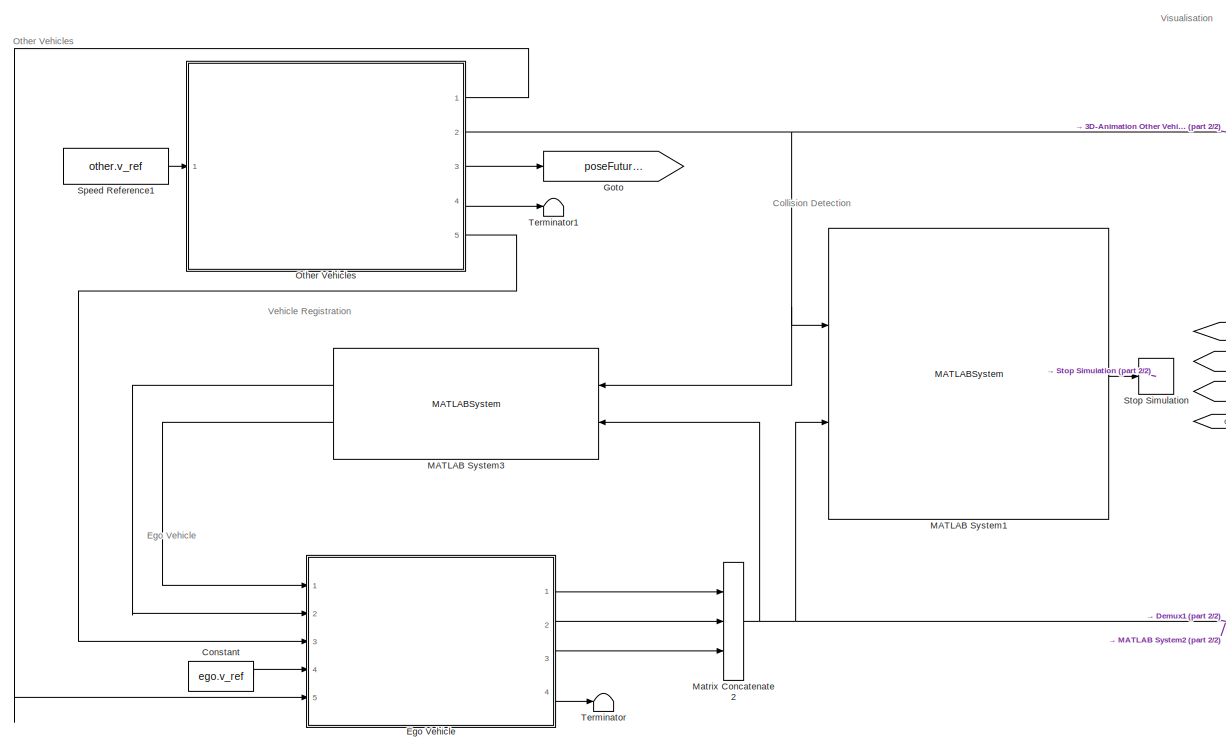
[diagram: root canvas - part 1/2, left side, full height]
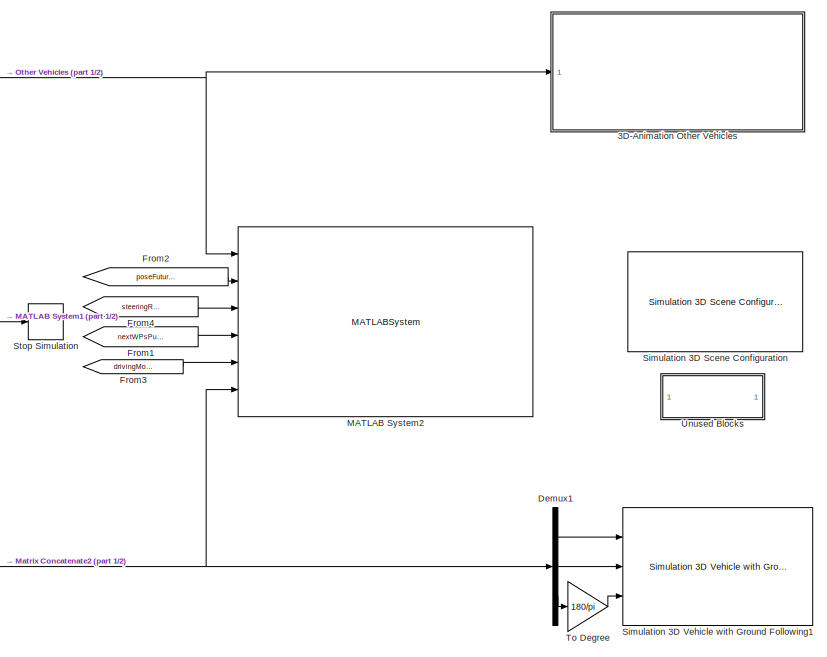
[diagram: root canvas - part 2/2, right side, full height]
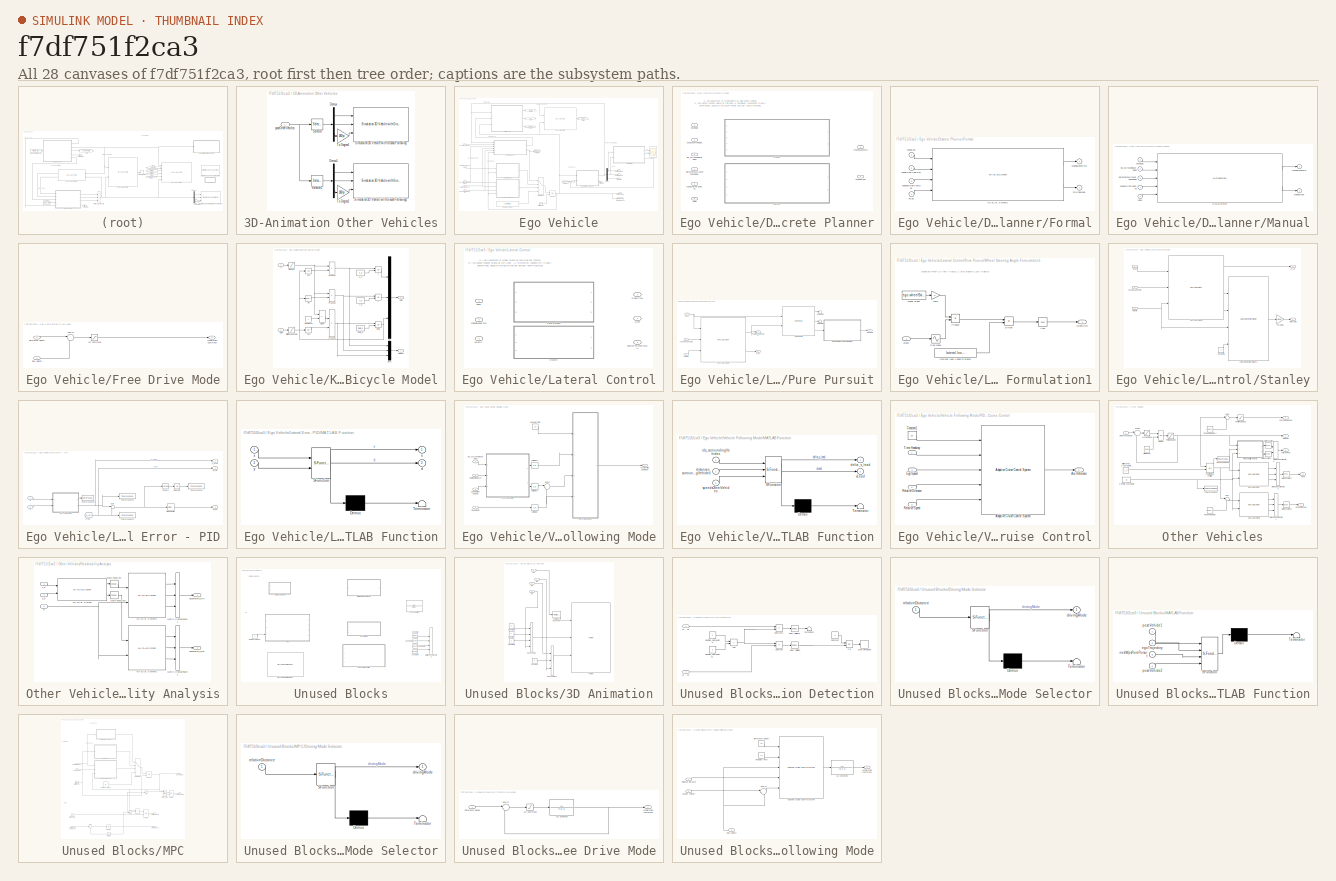
[diagram: thumbnail index - all 28 canvases of the model, root first then tree order]
MODEL slx_f7df751f2ca3
KIND model
CONFIG AbsTol = auto
CONFIG EnableMultiTasking = off
CONFIG FixedStep = Ts/2
CONFIG MaxStep = auto
CONFIG MinStep = auto
CONFIG RelTol = 1e-3
CONFIG SampleTimeConstraint = Unconstrained
CONFIG SolverName = FixedStepAuto
CONFIG StartTime = 0.0
CONFIG StopTime = 45
BLOCK [SubSystem] 3D-Animation Other Vehicles
  Commented = on
  Ports = [1]
  RequestExecContextInheritance = off
BLOCK [Demux] 3D-Animation Other Vehicles/Demux
  Outputs = 3
  Ports = [1, 3]
BLOCK [Demux] 3D-Animation Other Vehicles/Demux1
  Outputs = 3
  Ports = [1, 3]
BLOCK [Selector] 3D-Animation Other Vehicles/Selector
  IndexOptions = Select all,Index vector (dialog)
  Indices = [1 3],1
  InputPortWidth = 3
  NumberOfDimensions = 2
  OutputSizes = 1,1
  Ports = [1, 1]
BLOCK [Selector] 3D-Animation Other Vehicles/Selector1
  IndexOptions = Select all,Index vector (dialog)
  Indices = [1 3],2
  InputPortWidth = 3
  NumberOfDimensions = 2
  OutputSizes = 1,1
  Ports = [1, 1]
BLOCK [Reference] 3D-Animation Other Vehicles/Simulation 3D Vehicle with Ground Following  REF=sim3dautolib/Simulation 3D Vehicle with Ground Following
  Ports = [3]
  Priority = -1
  SourceBlock = sim3dautolib/Simulation 3D Vehicle with Ground Following
  SourceProductBaseCode = DR,UV,VE
  SourceType = Simulation 3D Vehicle with Ground Following
BLOCK [Reference] 3D-Animation Other Vehicles/Simulation 3D Vehicle with Ground Following1  REF=sim3dautolib/Simulation 3D Vehicle with Ground Following
  Ports = [3]
  Priority = -1
  SourceBlock = sim3dautolib/Simulation 3D Vehicle with Ground Following
  SourceProductBaseCode = DR,UV,VE
  SourceType = Simulation 3D Vehicle with Ground Following
BLOCK [Gain] 3D-Animation Other Vehicles/To Degree1
  Gain = 180/pi
BLOCK [Gain] 3D-Animation Other Vehicles/To Degree2
  Gain = 180/pi
BLOCK [Inport] 3D-Animation Other Vehicles/poseOtherVehicles
BLOCK [Constant] Constant
  Value = ego.v_ref
BLOCK [Demux] Demux1
  Commented = on
  Outputs = 3
  Ports = [1, 3]
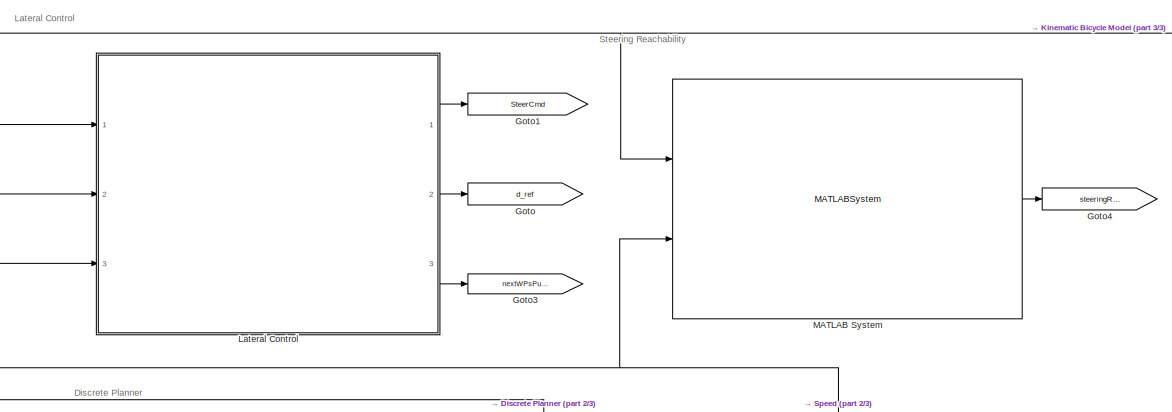
[diagram: Ego Vehicle - part 1/3, top center region]
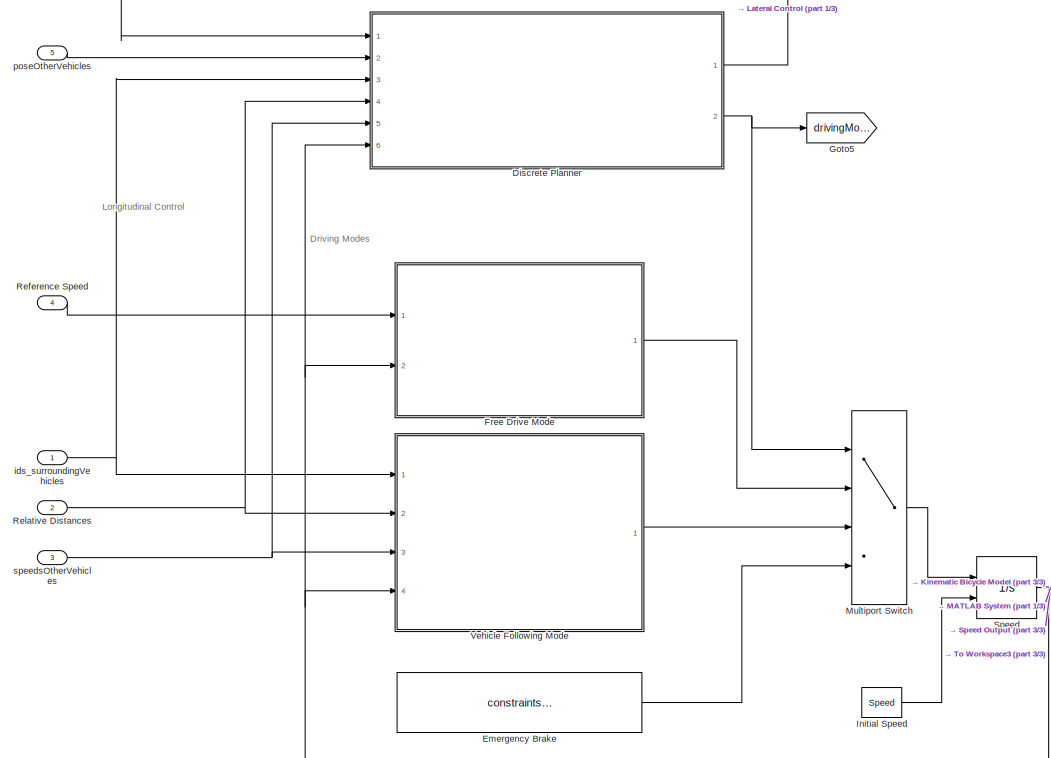
[diagram: Ego Vehicle - part 2/3, bottom left region]
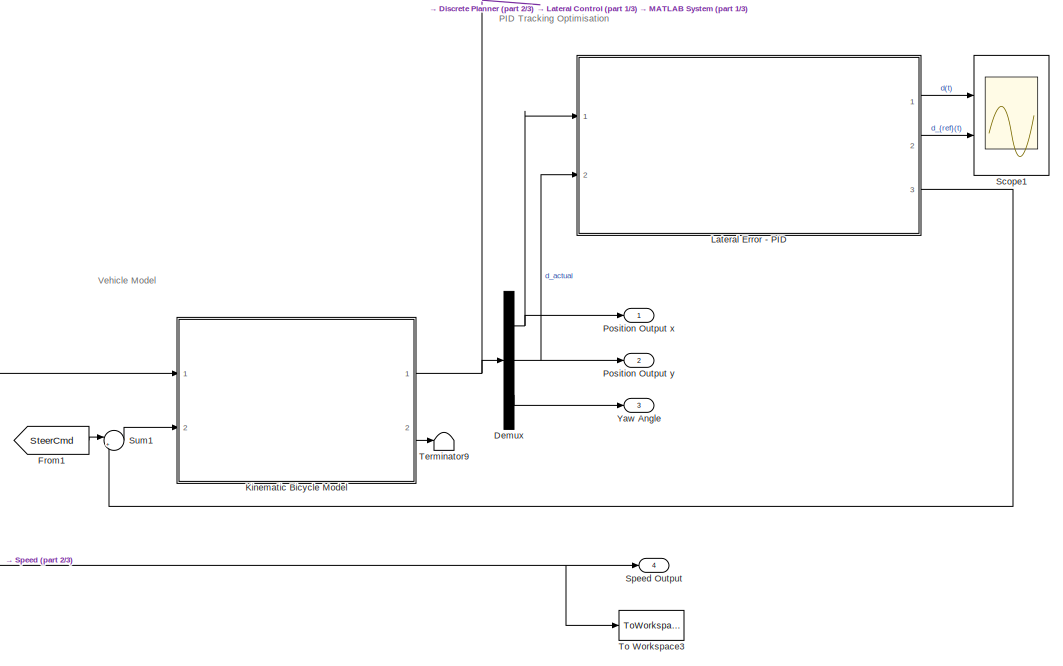
[diagram: Ego Vehicle - part 3/3, middle right region]
BLOCK [SubSystem] Ego Vehicle
  Ports = [5, 4]
  RequestExecContextInheritance = off
BLOCK [Demux] Ego Vehicle/Demux
  Outputs = 3
  Ports = [1, 3]
BLOCK [SubSystem] Ego Vehicle/Discrete Planner
  LabelModeActiveChoice = MANUAL
  Ports = [6, 2]
  RequestExecContextInheritance = off
  Variant = on
  VariantControlMode = label
BLOCK [SubSystem] Ego Vehicle/Discrete Planner/Formal
  Ports = [4, 2]
  RequestExecContextInheritance = off
  VariantControl = FORMAL
BLOCK [MATLABSystem] Ego Vehicle/Discrete Planner/Formal/MATLAB System1
  LaneWidth = road.laneWidth
  MaskDisplay = disp('DiscretePlannerFormal');\nport_label('input',1,'poseEgo');\nport_label('input',2,'poseOtherVehicles');\nport_label('input',3,'speedsOtherVehicles');\nport_label('input',4,'vEgo');\nport_label('output',1,'changeLaneCmd');\nport_label('output',2,'drivingMode');
  MaskType = DiscretePlannerFormal
  Ports = [4, 2]
  RoadTrajectory = road.trajectory
  SearchTree = []
  SimulateUsing = Interpreted execution
  System = DiscretePlannerFormal
  Ts = Ts
  emergencyAcceleration = constraints.a_emergency
  maximumAcceleration = constraints.a_max
  maximumVelocity = constraints.v_max
  minimumAcceleration = constraints.a_min
  partsTimeHorizon = trajectoryGeneration.partsTimeHorizon
  sigmaS = uncertainty.sigmaS
  sigmaV = uncertainty.sigmaV
  spaceDiscretisation = spaceDiscretisation
  steerAngle_max = constraints.steerAngle_max
  timeHorizon = trajectoryGeneration.timeHorizon
  vEgo_ref = ego.v_ref
  vOtherVehicles_ref = other.v_ref
  wheelBase = ego.wheelBase
BLOCK [Outport] Ego Vehicle/Discrete Planner/Formal/changeLaneCmd
BLOCK [Outport] Ego Vehicle/Discrete Planner/Formal/drivingMode
  Port = 2
BLOCK [Inport] Ego Vehicle/Discrete Planner/Formal/poseEgo
BLOCK [Inport] Ego Vehicle/Discrete Planner/Formal/poseOtherVehicles
  Port = 2
BLOCK [Inport] Ego Vehicle/Discrete Planner/Formal/speedsOtherVehicles
  Port = 3
BLOCK [Inport] Ego Vehicle/Discrete Planner/Formal/vEgo
  Port = 4
BLOCK [SubSystem] Ego Vehicle/Discrete Planner/Manual
  Ports = [5, 2]
  RequestExecContextInheritance = off
  VariantControl = MANUAL
BLOCK [MATLABSystem] Ego Vehicle/Discrete Planner/Manual/MATLAB System
  LaneWidth = road.laneWidth
  MaskDisplay = disp('DiscretePlannerManual');\nport_label('input',1,'poseEgo');\nport_label('input',2,'ids_surroundingVehicles');\nport_label('input',3,'distances2surroundingVehicles');\nport_label('input',4,'speedsOtherVehicles');\nport_label('input',5,'vEgo');\nport_label('output',1,'changeLaneCmd');\nport_label('output',2,'drivingMode');
  MaskType = DiscretePlannerManual
  Ports = [5, 2]
  RoadTrajectory = road.trajectory
  SimulateUsing = Interpreted execution
  System = DiscretePlannerManual
  Ts = Ts
  vEgo_ref = ego.v_ref
BLOCK [Outport] Ego Vehicle/Discrete Planner/Manual/changeLaneCmd
BLOCK [Inport] Ego Vehicle/Discrete Planner/Manual/distances2surroundingVehicles
  Port = 3
BLOCK [Outport] Ego Vehicle/Discrete Planner/Manual/drivingMode
  Port = 2
BLOCK [Inport] Ego Vehicle/Discrete Planner/Manual/ids_surroundingVehicles
  Port = 2
BLOCK [Inport] Ego Vehicle/Discrete Planner/Manual/poseEgo
BLOCK [Inport] Ego Vehicle/Discrete Planner/Manual/speedsOtherVehicles
  Port = 4
BLOCK [Inport] Ego Vehicle/Discrete Planner/Manual/vEgo
  Port = 5
BLOCK [Outport] Ego Vehicle/Discrete Planner/changeLaneCmd
BLOCK [Inport] Ego Vehicle/Discrete Planner/distances2surroundingVehicles
  Port = 4
BLOCK [Outport] Ego Vehicle/Discrete Planner/drivingMode
  Port = 2
BLOCK [Inport] Ego Vehicle/Discrete Planner/ids_surroundingVehicles
  Port = 3
BLOCK [Inport] Ego Vehicle/Discrete Planner/poseEgo
BLOCK [Inport] Ego Vehicle/Discrete Planner/poseOtherVehicles
  Port = 2
BLOCK [Inport] Ego Vehicle/Discrete Planner/speedsOtherVehicles
  Port = 5
BLOCK [Inport] Ego Vehicle/Discrete Planner/vEgo
  Port = 6
BLOCK [Constant] Ego Vehicle/Emergency Brake
  Value = constraints.a_emergency
BLOCK [SubSystem] Ego Vehicle/Free Drive Mode
  Ports = [2, 1]
  RequestExecContextInheritance = off
BLOCK [Saturate] Ego Vehicle/Free Drive Mode/Acc Command
  LowerLimit = constraints.a_min
  UpperLimit = constraints.a_max
BLOCK [Outport] Ego Vehicle/Free Drive Mode/Acceleration Command
BLOCK [Inport] Ego Vehicle/Free Drive Mode/Ego Velocity
  Port = 2
BLOCK [Inport] Ego Vehicle/Free Drive Mode/Reference Velocity
BLOCK [Sum] Ego Vehicle/Free Drive Mode/Sum13
  Inputs = |+-
  Ports = [2, 1]
BLOCK [From] Ego Vehicle/From1
  GotoTag = SteerCmd
BLOCK [Goto] Ego Vehicle/Goto
  GotoTag = d_ref
  TagVisibility = global
BLOCK [Goto] Ego Vehicle/Goto1
  GotoTag = SteerCmd
BLOCK [Goto] Ego Vehicle/Goto3
  GotoTag = nextWPsPurePursuit
  TagVisibility = global
BLOCK [Goto] Ego Vehicle/Goto4
  GotoTag = steeringReachability
  TagVisibility = global
BLOCK [Goto] Ego Vehicle/Goto5
  GotoTag = drivingMode
  TagVisibility = global
BLOCK [Constant] Ego Vehicle/Initial Speed
  Value = Speed
BLOCK [SubSystem] Ego Vehicle/Kinematic Bicycle Model
  Ports = [2, 2]
  RequestExecContextInheritance = off
BLOCK [Trigonometry] Ego Vehicle/Kinematic Bicycle Model/Cos
  Operator = cos
  Ports = [1, 1]
BLOCK [Product] Ego Vehicle/Kinematic Bicycle Model/Divide
  Inputs = */
  Ports = [2, 1]
BLOCK [Mux] Ego Vehicle/Kinematic Bicycle Model/Mux
  DisplayOption = bar
  Inputs = 3
  Ports = [3, 1]
BLOCK [Mux] Ego Vehicle/Kinematic Bicycle Model/Mux1
  DisplayOption = bar
  Inputs = 3
  Ports = [3, 1]
BLOCK [Product] Ego Vehicle/Kinematic Bicycle Model/Product1
  Ports = [2, 1]
BLOCK [Product] Ego Vehicle/Kinematic Bicycle Model/Product2
  Ports = [2, 1]
BLOCK [Product] Ego Vehicle/Kinematic Bicycle Model/Product3
  Ports = [2, 1]
BLOCK [Trigonometry] Ego Vehicle/Kinematic Bicycle Model/Sin
  Ports = [1, 1]
BLOCK [Trigonometry] Ego Vehicle/Kinematic Bicycle Model/Tan
  Operator = tan
  Ports = [1, 1]
BLOCK [Inport] Ego Vehicle/Kinematic Bicycle Model/delta
  Port = 2
BLOCK [Saturate] Ego Vehicle/Kinematic Bicycle Model/limit steering angle
  LowerLimit = delta_min
  UpperLimit = delta_max
BLOCK [Saturate] Ego Vehicle/Kinematic Bicycle Model/limit velocity
  LowerLimit = v_min
  UpperLimit = v_max
BLOCK [Outport] Ego Vehicle/Kinematic Bicycle Model/state
BLOCK [Outport] Ego Vehicle/Kinematic Bicycle Model/stateDot
  Port = 2
BLOCK [Integrator] Ego Vehicle/Kinematic Bicycle Model/theta
  InitialConditionSource = external
  Ports = [2, 1]
BLOCK [Constant] Ego Vehicle/Kinematic Bicycle Model/theta_0
  Value = theta_0
BLOCK [Inport] Ego Vehicle/Kinematic Bicycle Model/v
BLOCK [Constant] Ego Vehicle/Kinematic Bicycle Model/wheel base
  Value = L
BLOCK [Integrator] Ego Vehicle/Kinematic Bicycle Model/x
  InitialConditionSource = external
  Ports = [2, 1]
BLOCK [Constant] Ego Vehicle/Kinematic Bicycle Model/x_0
  Value = x_0
BLOCK [Integrator] Ego Vehicle/Kinematic Bicycle Model/y
  InitialConditionSource = external
  Ports = [2, 1]
BLOCK [Constant] Ego Vehicle/Kinematic Bicycle Model/y_0
  Value = y_0
BLOCK [SubSystem] Ego Vehicle/Lateral Control
  LabelModeActiveChoice = STANLEY
  Ports = [3, 3]
  RequestExecContextInheritance = off
  Variant = on
  VariantControlMode = label
BLOCK [SubSystem] Ego Vehicle/Lateral Control/Pure Pursuit
  Ports = [3, 3]
  RequestExecContextInheritance = off
  VariantControl = PURE_PURSUIT
BLOCK [MATLABSystem] Ego Vehicle/Lateral Control/Pure Pursuit/MATLAB System4
  LaneWidth = road.laneWidth
  MaskDisplay = disp('PurePursuitWPGenerator');\nport_label('input',1,'pose');\nport_label('input',2,'changeLaneCmd');\nport_label('input',3,'velocity');\nport_label('output',1,'nextWPs');\nport_label('output',2,'d_ref');
  MaskType = PurePursuitWPGenerator
  Ports = [3, 2]
  RoadTrajectory = road.trajectory
  SimulateUsing = Interpreted execution
  System = PurePursuitWPGenerator
  Ts = Ts
  maximumAcceleration = constraints.a_max
  numberWaypoints = lateral.numberWaypoints
  steerAngle_max = constraints.steerAngle_max
  timeHorizon = trajectoryGeneration.timeHorizon
  vEgo_ref = ego.v_ref
  wheelBase = ego.wheelBase
BLOCK [Reference] Ego Vehicle/Lateral Control/Pure Pursuit/Pure Pursuit1  REF=robotalgslib/Pure Pursuit
  Ports = [2, 3]
  SourceBlock = robotalgslib/Pure Pursuit
  SourceProductBaseCode = NV,RO
  SourceType = nav.slalgs.internal.PurePursuit
BLOCK [Outport] Ego Vehicle/Lateral Control/Pure Pursuit/SteerCmd
BLOCK [Terminator] Ego Vehicle/Lateral Control/Pure Pursuit/Terminator2
BLOCK [Terminator] Ego Vehicle/Lateral Control/Pure Pursuit/Terminator3
BLOCK [SubSystem] Ego Vehicle/Lateral Control/Pure Pursuit/Wheel Steering Angle Formulation1
  Ports = [1, 1]
  RequestExecContextInheritance = off
BLOCK [Trigonometry] Ego Vehicle/Lateral Control/Pure Pursuit/Wheel Steering Angle Formulation1/Atan
  Operator = atan
  Ports = [1, 1]
BLOCK [Product] Ego Vehicle/Lateral Control/Pure Pursuit/Wheel Steering Angle Formulation1/Divide
  Inputs = */
  Ports = [2, 1]
BLOCK [Gain] Ego Vehicle/Lateral Control/Pure Pursuit/Wheel Steering Angle Formulation1/Gain
  Gain = 2
BLOCK [Constant] Ego Vehicle/Lateral Control/Pure Pursuit/Wheel Steering Angle Formulation1/One over Look Ahead Distance
  Value = lateral.lookAheadDistance
BLOCK [Product] Ego Vehicle/Lateral Control/Pure Pursuit/Wheel Steering Angle Formulation1/Product
  Ports = [2, 1]
BLOCK [Sin] Ego Vehicle/Lateral Control/Pure Pursuit/Wheel Steering Angle Formulation1/Sine Wave
  Ports = [1, 1]
  SampleTime = 0
  TimeSource = Use external signal
BLOCK [Outport] Ego Vehicle/Lateral Control/Pure Pursuit/Wheel Steering Angle Formulation1/SteerCmd
BLOCK [Constant] Ego Vehicle/Lateral Control/Pure Pursuit/Wheel Steering Angle Formulation1/Wheel Base
  Value = ego.wheelBase
BLOCK [Inport] Ego Vehicle/Lateral Control/Pure Pursuit/Wheel Steering Angle Formulation1/alpha
BLOCK [Inport] Ego Vehicle/Lateral Control/Pure Pursuit/changeLaneCmd
  Port = 2
BLOCK [Outport] Ego Vehicle/Lateral Control/Pure Pursuit/d_ref
  Port = 2
BLOCK [Outport] Ego Vehicle/Lateral Control/Pure Pursuit/nextWPsPurePursuit
  Port = 3
BLOCK [Inport] Ego Vehicle/Lateral Control/Pure Pursuit/pose
BLOCK [Inport] Ego Vehicle/Lateral Control/Pure Pursuit/velocity
  Port = 3
BLOCK [SubSystem] Ego Vehicle/Lateral Control/Stanley
  Ports = [3, 2]
  RequestExecContextInheritance = off
  VariantControl = STANLEY
BLOCK [Constant] Ego Vehicle/Lateral Control/Stanley/Constant1
BLOCK [Reference] Ego Vehicle/Lateral Control/Stanley/Lateral Controller Stanley1  REF=drivingvehiclecontroller/Lateral Controller Stanley
  Ports = [4, 1]
  SourceBlock = drivingvehiclecontroller/Lateral Controller Stanley
  SourceProductBaseCode = DR
  SourceType = Lateral Controller Stanley
BLOCK [MATLABSystem] Ego Vehicle/Lateral Control/Stanley/MATLAB System3
  LaneWidth = road.laneWidth
  MaskDisplay = disp('StanleyPoseGenerator');\nport_label('input',1,'pose');\nport_label('input',2,'changeLaneCmd');\nport_label('input',3,'velocity');\nport_label('output',1,'d_ref');\nport_label('output',2,'referencePose');\nport_label('output',3,'poseOut');
  MaskType = StanleyPoseGenerator
  Ports = [3, 3]
  RoadTrajectory = road.trajectory
  SimulateUsing = Interpreted execution
  System = StanleyPoseGenerator
  Ts = Ts
  maximumAcceleration = constraints.a_max
  steerAngle_max = constraints.steerAngle_max
  timeHorizon = trajectoryGeneration.timeHorizon
  vEgo_ref = ego.v_ref
  wheelBase = ego.wheelBase
BLOCK [Outport] Ego Vehicle/Lateral Control/Stanley/SteerCmd
BLOCK [Gain] Ego Vehicle/Lateral Control/Stanley/To radian
  Gain = pi/180
BLOCK [Inport] Ego Vehicle/Lateral Control/Stanley/changeLaneCmd
  Port = 2
BLOCK [Outport] Ego Vehicle/Lateral Control/Stanley/d_ref
  Port = 2
BLOCK [Inport] Ego Vehicle/Lateral Control/Stanley/pose
BLOCK [Inport] Ego Vehicle/Lateral Control/Stanley/velocity
  Port = 3
BLOCK [Outport] Ego Vehicle/Lateral Control/SteerCmd
BLOCK [Inport] Ego Vehicle/Lateral Control/changeLaneCmd
  Port = 2
BLOCK [Outport] Ego Vehicle/Lateral Control/d_ref
  Port = 2
BLOCK [Outport] Ego Vehicle/Lateral Control/nextWPsPurePursuit
  Port = 3
BLOCK [Inport] Ego Vehicle/Lateral Control/pose
BLOCK [Inport] Ego Vehicle/Lateral Control/velocity
  Port = 3
BLOCK [SubSystem] Ego Vehicle/Lateral Error - PID
  Ports = [2, 3]
  RequestExecContextInheritance = off
BLOCK [From] Ego Vehicle/Lateral Error - PID/From
  GotoTag = d_ref
  TagVisibility = global
BLOCK [Integrator] Ego Vehicle/Lateral Error - PID/Integrator
  Ports = [1, 1]
BLOCK [SubSystem] Ego Vehicle/Lateral Error - PID/MATLAB Function
  ErrorFcn = Stateflow.Translate.translate
  PermitHierarchicalResolution = ExplicitOnly
  Ports = [2, 2]
  RequestExecContextInheritance = off
  SFBlockType = MATLAB Function
  TreatAsAtomicUnit = on
BLOCK [Demux] Ego Vehicle/Lateral Error - PID/MATLAB Function/ Demux 
  Outputs = 1
  Ports = [1, 1]
BLOCK [S-Function] Ego Vehicle/Lateral Error - PID/MATLAB Function/ SFunction 
  EnableBusSupport = on
  FunctionName = sf_sfun
  Parameters = currentTrajectory
  PortCounts = [2 3]
  Ports = [2, 3]
  SFcnIsStateOwnerBlock = off
  SFunctionDeploymentMode = off
  Tag = Stateflow S-Function 5
BLOCK [Terminator] Ego Vehicle/Lateral Error - PID/MATLAB Function/ Terminator 
BLOCK [Outport] Ego Vehicle/Lateral Error - PID/MATLAB Function/d
  Port = 2
BLOCK [Outport] Ego Vehicle/Lateral Error - PID/MATLAB Function/s
BLOCK [Inport] Ego Vehicle/Lateral Error - PID/MATLAB Function/x
BLOCK [Inport] Ego Vehicle/Lateral Error - PID/MATLAB Function/y
  Port = 2
BLOCK [Reference] Ego Vehicle/Lateral Error - PID/PID Controller  REF=pid_lib/PID Controller
  Ports = [1, 1]
  SourceBlock = pid_lib/PID Controller
  SourceProductBaseCode = SL
  SourceType = PID 1dof
BLOCK [Outport] Ego Vehicle/Lateral Error - PID/PI_out
  Port = 3
BLOCK [Math] Ego Vehicle/Lateral Error - PID/Square
  Operator = square
  Ports = [1, 1]
BLOCK [Sum] Ego Vehicle/Lateral Error - PID/Sum
  Inputs = |+-
  Ports = [2, 1]
BLOCK [ToWorkspace] Ego Vehicle/Lateral Error - PID/To Workspace
  FixptAsFi = on
  MaxDataPoints = inf
  Ports = [1]
  SampleTime = -1
  Save2DSignal = 2-D array (concatenate along first dimension)
  VariableName = ISE_d
BLOCK [ToWorkspace] Ego Vehicle/Lateral Error - PID/To Workspace1
  FixptAsFi = on
  MaxDataPoints = inf
  Ports = [1]
  SampleTime = -1
  Save2DSignal = 2-D array (concatenate along first dimension)
  VariableName = d_ref
BLOCK [ToWorkspace] Ego Vehicle/Lateral Error - PID/To Workspace2
  FixptAsFi = on
  MaxDataPoints = inf
  Ports = [1]
  SampleTime = -1
  Save2DSignal = 2-D array (concatenate along first dimension)
  VariableName = d
BLOCK [ToWorkspace] Ego Vehicle/Lateral Error - PID/To Workspace3
  FixptAsFi = on
  MaxDataPoints = inf
  Ports = [1]
  SampleTime = -1
  Save2DSignal = 2-D array (concatenate along first dimension)
  VariableName = s
BLOCK [Outport] Ego Vehicle/Lateral Error - PID/d_actual
BLOCK [Outport] Ego Vehicle/Lateral Error - PID/d_ref
  Port = 2
BLOCK [Inport] Ego Vehicle/Lateral Error - PID/x
BLOCK [Inport] Ego Vehicle/Lateral Error - PID/y
  Port = 2
BLOCK [MATLABSystem] Ego Vehicle/MATLAB System
  MaskDisplay = disp('SteeringReachability');\nport_label('input',1,'pose');\nport_label('input',2,'v');\nport_label('output',1,'steeringReachability');
  MaskType = SteeringReachability
  Ports = [2, 1]
  RoadTrajectory = road.trajectory
  SimulateUsing = Interpreted execution
  System = SteeringReachability
  Ts = Ts
  emergencyAcceleration = constraints.a_emergency
  maximumAcceleration = constraints.a_max
  maximumVelocity = constraints.v_max
  minimumAcceleration = constraints.a_min
  steerAngle_max = constraints.steerAngle_max
  timeHorizon = trajectoryGeneration.timeHorizon
  wheelBase = ego.wheelBase
BLOCK [MultiPortSwitch] Ego Vehicle/Multiport Switch
  InputSameDT = off
  Ports = [4, 1]
  SaturateOnIntegerOverflow = off
BLOCK [Outport] Ego Vehicle/Position Output x
  VectorParamsAs1DForOutWhenUnconnected = off
BLOCK [Outport] Ego Vehicle/Position Output y
  Port = 2
  VectorParamsAs1DForOutWhenUnconnected = off
BLOCK [Inport] Ego Vehicle/Reference Speed
  Port = 4
BLOCK [Inport] Ego Vehicle/Relative Distances
  Port = 2
BLOCK [Scope] Ego Vehicle/Scope1
  Floating = off
  NumInputPorts = 2
  Ports = [2]
  ScopeSpecificationString = Simulink.scopes.TimeScopeBlockCfg('CurrentConfiguration', extmgr.ConfigurationSet(extmgr.Configuration('Core','General UI',true),extmgr.Configuration('Core','Source UI',true),extmgr.Configuration('Sources','WiredSimulink',true,'DataLoggingVariableName','ScopeData1'),extmgr.Configuration('Visuals','Time Domain',true,'SerializedDisplays',{struct('MinYLimReal','-0.4867','MaxYLimReal','4.18706','YLabe...<+1448ch>
BLOCK [Integrator] Ego Vehicle/Speed
  InitialConditionSource = external
  LimitOutput = on
  LowerSaturationLimit = constraints.v_min
  Ports = [2, 1]
  UpperSaturationLimit = constraints.v_max
BLOCK [Outport] Ego Vehicle/Speed Output
  Port = 4
  VectorParamsAs1DForOutWhenUnconnected = off
BLOCK [Sum] Ego Vehicle/Sum1
  Inputs = |+-
  Ports = [2, 1]
BLOCK [Terminator] Ego Vehicle/Terminator9
BLOCK [ToWorkspace] Ego Vehicle/To Workspace3
  FixptAsFi = on
  MaxDataPoints = inf
  Ports = [1]
  SampleTime = -1
  Save2DSignal = 2-D array (concatenate along first dimension)
  VariableName = v
BLOCK [SubSystem] Ego Vehicle/Vehicle Following Mode
  Ports = [4, 1]
  RequestExecContextInheritance = off
BLOCK [Outport] Ego Vehicle/Vehicle Following Mode/Acceleration Command
BLOCK [Inport] Ego Vehicle/Vehicle Following Mode/Ego Velocity
  Port = 4
BLOCK [Constant] Ego Vehicle/Vehicle Following Mode/Headway Time
  Value = 1.4
BLOCK [SubSystem] Ego Vehicle/Vehicle Following Mode/MATLAB Function
  ErrorFcn = Stateflow.Translate.translate
  PermitHierarchicalResolution = ExplicitOnly
  Ports = [3, 2]
  RequestExecContextInheritance = off
  SFBlockType = MATLAB Function
  TreatAsAtomicUnit = on
BLOCK [Demux] Ego Vehicle/Vehicle Following Mode/MATLAB Function/ Demux 
  Outputs = 1
  Ports = [1, 1]
BLOCK [S-Function] Ego Vehicle/Vehicle Following Mode/MATLAB Function/ SFunction 
  EnableBusSupport = on
  FunctionName = sf_sfun
  PortCounts = [3 3]
  Ports = [3, 3]
  SFcnIsStateOwnerBlock = off
  SFunctionDeploymentMode = off
  Tag = Stateflow S-Function 11
BLOCK [Terminator] Ego Vehicle/Vehicle Following Mode/MATLAB Function/ Terminator 
BLOCK [Outport] Ego Vehicle/Vehicle Following Mode/MATLAB Function/delta_s_lead
BLOCK [Inport] Ego Vehicle/Vehicle Following Mode/MATLAB Function/distances_surroundingVehicles
  Port = 2
BLOCK [Inport] Ego Vehicle/Vehicle Following Mode/MATLAB Function/ids_surroundingVehicles
BLOCK [Inport] Ego Vehicle/Vehicle Following Mode/MATLAB Function/speedsOtherVehicles
  Port = 3
BLOCK [Outport] Ego Vehicle/Vehicle Following Mode/MATLAB Function/vLead
  Port = 2
BLOCK [SubSystem] Ego Vehicle/Vehicle Following Mode/PID - Cruise Control
  Ports = [4, 1]
  RequestExecContextInheritance = off
BLOCK [Outport] Ego Vehicle/Vehicle Following Mode/PID - Cruise Control/Acc Reference
BLOCK [Reference] Ego Vehicle/Vehicle Following Mode/PID - Cruise Control/Adaptive Cruise Control System  REF=mpcadaslib/Adaptive Cruise Control System
  Ports = [5, 1]
  SourceBlock = mpcadaslib/Adaptive Cruise Control System
  SourceProductBaseCode = MP
  SourceType = Adaptive cruise control (ACC) system
BLOCK [Constant] Ego Vehicle/Vehicle Following Mode/PID - Cruise Control/Constant1
  Value = 20
BLOCK [Inport] Ego Vehicle/Vehicle Following Mode/PID - Cruise Control/Ego Speed
  Port = 4
BLOCK [Inport] Ego Vehicle/Vehicle Following Mode/PID - Cruise Control/Relative Distance
  Port = 2
BLOCK [Inport] Ego Vehicle/Vehicle Following Mode/PID - Cruise Control/Relative Speed
  Port = 3
BLOCK [Inport] Ego Vehicle/Vehicle Following Mode/PID - Cruise Control/Time Headway
BLOCK [Inport] Ego Vehicle/Vehicle Following Mode/Relative Distances
  Port = 2
BLOCK [Inport] Ego Vehicle/Vehicle Following Mode/Speed Other Vehicles
  Port = 3
BLOCK [Sum] Ego Vehicle/Vehicle Following Mode/Sum13
  Inputs = |+-
  Ports = [2, 1]
BLOCK [UnitDelay] Ego Vehicle/Vehicle Following Mode/Unit Delay
  HasFrameUpgradeWarning = on
  SampleTime = -1
BLOCK [UnitDelay] Ego Vehicle/Vehicle Following Mode/Unit Delay1
  HasFrameUpgradeWarning = on
  SampleTime = -1
BLOCK [UnitDelay] Ego Vehicle/Vehicle Following Mode/Unit Delay2
  HasFrameUpgradeWarning = on
  SampleTime = -1
BLOCK [Inport] Ego Vehicle/Vehicle Following Mode/ids_surroundingVehicles
BLOCK [Outport] Ego Vehicle/Yaw Angle
  Port = 3
  VectorParamsAs1DForOutWhenUnconnected = off
BLOCK [Inport] Ego Vehicle/ids_surroundingVehicles
BLOCK [Inport] Ego Vehicle/poseOtherVehicles
  Port = 5
BLOCK [Inport] Ego Vehicle/speedsOtherVehicles
  Port = 3
BLOCK [From] From1
  GotoTag = nextWPsPurePursuit
  TagVisibility = global
BLOCK [From] From2
  GotoTag = poseFutureOtherVehicles
BLOCK [From] From3
  GotoTag = drivingMode
  TagVisibility = global
BLOCK [From] From4
  GotoTag = steeringReachability
  TagVisibility = global
BLOCK [Goto] Goto
  GotoTag = poseFutureOtherVehicles
BLOCK [MATLABSystem] MATLAB System1
  MaskDisplay = disp('CollisionDetection');\nport_label('input',1,'poseOtherVehicles');\nport_label('input',2,'poseEgo');\nport_label('output',1,'isCollided');
  MaskType = CollisionDetection
  Ports = [2, 1]
  SimulateUsing = Interpreted execution
  System = CollisionDetection
  dimensionsEgo = ego.dimensions
  dimensionsOtherVehicles = other.dimensions
  wheelBaseEgo = ego.wheelBase
  wheelBaseOtherVehicles = other.wheelBase
BLOCK [MATLABSystem] MATLAB System2
  LaneWidth = road.laneWidth
  MaskDisplay = disp('PlotDrivingScenario');\nport_label('input',1,'poseOtherVehicles');\nport_label('input',2,'poseOtherVehiclesFuture');\nport_label('input',3,'egoReachability');\nport_label('input',4,'nextWPsPurePursuit');\nport_label('input',5,'currentDrivingMode');\nport_label('input',6,'poseEgo');
  MaskType = PlotDrivingScenario
  Ports = [6]
  RoadTrajectory = road.trajectory
  SimulateUsing = Interpreted execution
  System = PlotDrivingScenario
  dimensionsEgo = ego.dimensions
  dimensionsOtherVehicles = other.dimensions
  spaceDiscretisation = spaceDiscretisation
  wheelBaseEgo = ego.wheelBase
  wheelBaseOtherVehicles = other.wheelBase
BLOCK [MATLABSystem] MATLAB System3
  LaneWidth = road.laneWidth
  MaskDisplay = disp('RegisterVehicles');\nport_label('input',1,'poseOtherVehicles');\nport_label('input',2,'poseEgo');\nport_label('output',1,'distances2Vehicles');\nport_label('output',2,'ids_surroundingVehicles');
  MaskType = RegisterVehicles
  NameLocation = top
  Ports = [2, 2]
  RoadTrajectory = road.trajectory
  SimulateUsing = Interpreted execution
  System = RegisterVehicles
BLOCK [Concatenate] Matrix Concatenate2
  ConcatenateDimension = 2
  NumInputs = 3
  Ports = [3, 1]
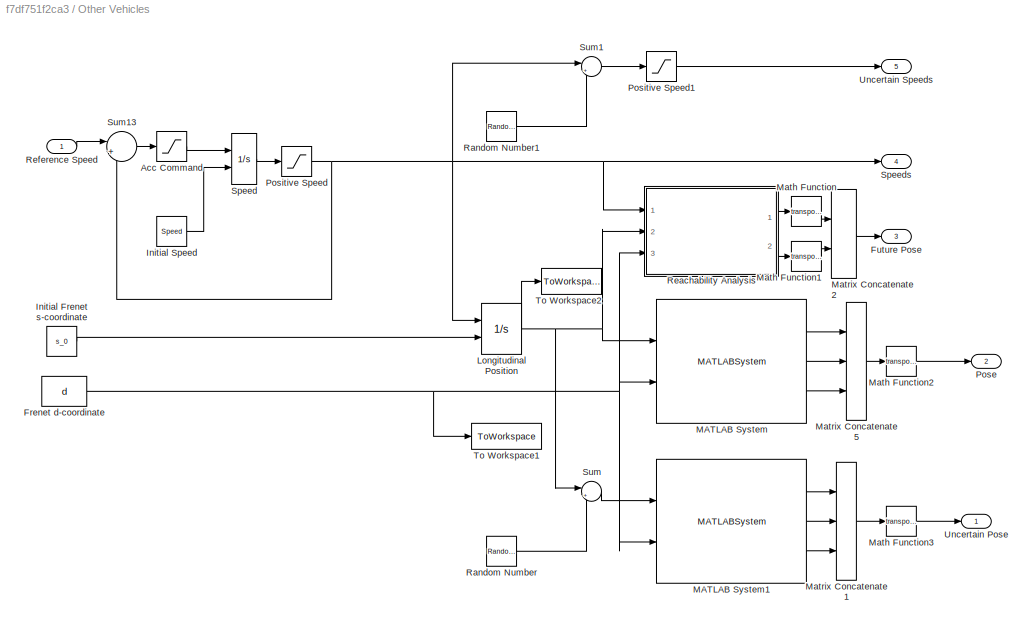
BLOCK [SubSystem] Other Vehicles
  Ports = [1, 5]
  RequestExecContextInheritance = off
BLOCK [Saturate] Other Vehicles/Acc Command
  LowerLimit = constraints.a_min
  UpperLimit = constraints.a_max
BLOCK [Constant] Other Vehicles/Frenet d-coordinate
  Value = d
BLOCK [Outport] Other Vehicles/Future Pose
  Port = 3
BLOCK [Constant] Other Vehicles/Initial Frenet s-coordinate
  Value = s_0
BLOCK [Constant] Other Vehicles/Initial Speed
  Value = Speed
BLOCK [Integrator] Other Vehicles/Longitudinal Position
  InitialConditionSource = external
  Ports = [2, 1]
BLOCK [MATLABSystem] Other Vehicles/MATLAB System
  MaskDisplay = disp('Frenet2CartesianSystem');\nport_label('input',1,'s');\nport_label('input',2,'d');\nport_label('output',1,'x');\nport_label('output',2,'y');\nport_label('output',3,'refOrientation');  <repeated x4 — deduplicated; at blocks: MATLAB System, MATLAB System1, MATLAB System2>
  MaskType = Frenet2CartesianSystem
  Ports = [2, 3]
  RoadTrajectory = road.trajectory
  SimulateUsing = Interpreted execution
  System = Frenet2CartesianSystem
  lengthOut = other.number
BLOCK [MATLABSystem] Other Vehicles/MATLAB System1
  MaskType = Frenet2CartesianSystem
  Ports = [2, 3]
  RoadTrajectory = road.trajectory
  SimulateUsing = Interpreted execution
  System = Frenet2CartesianSystem
  lengthOut = other.number
BLOCK [Math] Other Vehicles/Math Function
  Operator = transpose
  Ports = [1, 1]
BLOCK [Math] Other Vehicles/Math Function1
  Operator = transpose
  Ports = [1, 1]
BLOCK [Math] Other Vehicles/Math Function2
  Operator = transpose
  Ports = [1, 1]
BLOCK [Math] Other Vehicles/Math Function3
  Operator = transpose
  Ports = [1, 1]
BLOCK [Concatenate] Other Vehicles/Matrix Concatenate1
  ConcatenateDimension = 2
  Mode = Multidimensional array
  NumInputs = 3
  Ports = [3, 1]
BLOCK [Concatenate] Other Vehicles/Matrix Concatenate2
  Mode = Multidimensional array
  Ports = [2, 1]
BLOCK [Concatenate] Other Vehicles/Matrix Concatenate5
  ConcatenateDimension = 2
  Mode = Multidimensional array
  NumInputs = 3
  Ports = [3, 1]
BLOCK [Outport] Other Vehicles/Pose
  Port = 2
BLOCK [Saturate] Other Vehicles/Positive Speed
  LowerLimit = constraints.v_min
  UpperLimit = constraints.v_max
BLOCK [Saturate] Other Vehicles/Positive Speed1
  LowerLimit = constraints.v_min
  UpperLimit = constraints.v_max
BLOCK [RandomNumber] Other Vehicles/Random Number
  SampleTime = Ts
  Variance = uncertainty.sigmaS^2
BLOCK [RandomNumber] Other Vehicles/Random Number1
  SampleTime = Ts
  Variance = uncertainty.sigmaV^2
BLOCK [SubSystem] Other Vehicles/Reachability Analysis
  Ports = [3, 2]
  RequestExecContextInheritance = off
BLOCK [MATLABSystem] Other Vehicles/Reachability Analysis/MATLAB System
  MaskDisplay = disp('LongitudinalReachability');\nport_label('input',1,'v_0');\nport_label('input',2,'s_0');\nport_label('output',1,'sFuture_min');\nport_label('output',2,'sFuture_max');
  MaskType = LongitudinalReachability
  Ports = [2, 2]
  RoadTrajectory = road.trajectory
  SimulateUsing = Interpreted execution
  System = LongitudinalReachability
  Ts = Ts
  emergencyAcceleration = constraints.a_emergency
  lengthOut = other.number
  maximumAcceleration = constraints.a_max
  maximumVelocity = constraints.v_max
  minimumAcceleration = constraints.a_min
  steerAngle_max = constraints.steerAngle_max
  timeHorizon = trajectoryGeneration.timeHorizon
  wheelBase = other.wheelBase(1)
BLOCK [MATLABSystem] Other Vehicles/Reachability Analysis/MATLAB System1
  MaskType = Frenet2CartesianSystem
  Ports = [2, 3]
  RoadTrajectory = road.trajectory
  SimulateUsing = Interpreted execution
  System = Frenet2CartesianSystem
  lengthOut = other.number
BLOCK [MATLABSystem] Other Vehicles/Reachability Analysis/MATLAB System2
  MaskType = Frenet2CartesianSystem
  Ports = [2, 3]
  RoadTrajectory = road.trajectory
  SimulateUsing = Interpreted execution
  System = Frenet2CartesianSystem
  lengthOut = other.number
BLOCK [Math] Other Vehicles/Reachability Analysis/Math Function
  Operator = transpose
  Ports = [1, 1]
BLOCK [Math] Other Vehicles/Reachability Analysis/Math Function1
  Operator = transpose
  Ports = [1, 1]
BLOCK [Concatenate] Other Vehicles/Reachability Analysis/Matrix Concatenate1
  ConcatenateDimension = 2
  Mode = Multidimensional array
  NumInputs = 3
  Ports = [3, 1]
BLOCK [Concatenate] Other Vehicles/Reachability Analysis/Matrix Concatenate2
  ConcatenateDimension = 2
  Mode = Multidimensional array
  NumInputs = 3
  Ports = [3, 1]
BLOCK [Inport] Other Vehicles/Reachability Analysis/d
  Port = 3
BLOCK [Outport] Other Vehicles/Reachability Analysis/poseFuture_max
  Port = 2
BLOCK [Outport] Other Vehicles/Reachability Analysis/poseFuture_min
BLOCK [Inport] Other Vehicles/Reachability Analysis/s_0
  Port = 2
BLOCK [Inport] Other Vehicles/Reachability Analysis/v_0
BLOCK [Inport] Other Vehicles/Reference Speed
BLOCK [Integrator] Other Vehicles/Speed
  InitialConditionSource = external
  Ports = [2, 1]
BLOCK [Outport] Other Vehicles/Speeds
  Port = 4
  VectorParamsAs1DForOutWhenUnconnected = off
BLOCK [Sum] Other Vehicles/Sum
  Inputs = |++
  Ports = [2, 1]
BLOCK [Sum] Other Vehicles/Sum1
  Inputs = |++
  Ports = [2, 1]
BLOCK [Sum] Other Vehicles/Sum13
  Inputs = |+-
  Ports = [2, 1]
BLOCK [ToWorkspace] Other Vehicles/To Workspace1
  FixptAsFi = on
  MaxDataPoints = inf
  Ports = [1]
  SampleTime = -1
  Save2DSignal = 2-D array (concatenate along first dimension)
  VariableName = d_other
BLOCK [ToWorkspace] Other Vehicles/To Workspace2
  FixptAsFi = on
  MaxDataPoints = inf
  Ports = [1]
  SampleTime = -1
  Save2DSignal = 2-D array (concatenate along first dimension)
  VariableName = s_other
BLOCK [Outport] Other Vehicles/Uncertain Pose
  VectorParamsAs1DForOutWhenUnconnected = off
BLOCK [Outport] Other Vehicles/Uncertain Speeds
  Port = 5
  VectorParamsAs1DForOutWhenUnconnected = off
BLOCK [Reference] Simulation 3D Scene Configuration  REF=sim3dlib/Simulation 3D Scene Configuration
  Commented = on
  Ports = []
  Priority = 0
  SourceBlock = sim3dlib/Simulation 3D Scene Configuration
  SourceProductBaseCode = DR,UV,VE
  SourceType = Simulation 3D Scene Configuration
BLOCK [Reference] Simulation 3D Vehicle with Ground Following1  REF=sim3dautolib/Simulation 3D Vehicle with Ground Following
  Commented = on
  Ports = [3]
  Priority = -1
  SourceBlock = sim3dautolib/Simulation 3D Vehicle with Ground Following
  SourceProductBaseCode = DR,UV,VE
  SourceType = Simulation 3D Vehicle with Ground Following
BLOCK [Constant] Speed Reference1
  Value = other.v_ref
BLOCK [Stop] Stop Simulation
BLOCK [Terminator] Terminator
BLOCK [Terminator] Terminator1
BLOCK [Gain] To Degree
  Commented = on
  Gain = 180/pi
BLOCK [SubSystem] Unused Blocks
  Commented = on
  Ports = []
  RequestExecContextInheritance = off
BLOCK [SubSystem] Unused Blocks/3D Animation
  Commented = on
  Ports = [4]
  RequestExecContextInheritance = off
BLOCK [BusCreator] Unused Blocks/3D Animation/Bus Creator
  DisplayOption = bar
  InheritFromInputs = on
  Inputs = 4
  Ports = [4, 1]
BLOCK [BusCreator] Unused Blocks/3D Animation/Bus Creator1
  DisplayOption = bar
  InheritFromInputs = on
  Inputs = 3
  Ports = [3, 1]
BLOCK [Constant] Unused Blocks/3D Animation/Constant
BLOCK [Constant] Unused Blocks/3D Animation/Constant1
  Value = 0
BLOCK [Constant] Unused Blocks/3D Animation/Constant2
  Value = 0
BLOCK [Constant] Unused Blocks/3D Animation/Constant3
  Value = 0
BLOCK [Inport] Unused Blocks/3D Animation/In1
  Port = 4
BLOCK [Inport] Unused Blocks/3D Animation/In2
BLOCK [Inport] Unused Blocks/3D Animation/In3
  Port = 3
BLOCK [Inport] Unused Blocks/3D Animation/In4
  Port = 2
BLOCK [Reference] Unused Blocks/3D Animation/VR Signal Expander  REF=vrlib/VR Signal Expander
  Ports = [1, 1]
  SourceBlock = vrlib/VR Signal Expander
  SourceProductBaseCode = SL
  SourceType = VR Signal Expander
BLOCK [Reference] Unused Blocks/3D Animation/VR Sink  REF=vrlib/VR Sink
  InstantiateOnLoad = on
  Ports = [3]
  SourceBlock = vrlib/VR Sink
  SourceProductBaseCode = SL
  SourceType = Virtual Reality Sink
BLOCK [TransferFcn] Unused Blocks/Acc Dynamics
  Commented = on
  Denominator = [0.5 1]
BLOCK [Reference] Unused Blocks/Bicycle Kinematic Model  REF=robotmobilelib/Bicycle Kinematic Model
  Commented = on
  Ports = [2, 2]
  SourceBlock = robotmobilelib/Bicycle Kinematic Model
  SourceProductBaseCode = RO
  SourceType = Bicycle Kinematic Model
BLOCK [SubSystem] Unused Blocks/Collision Detection
  Commented = on
  Ports = [2]
  RequestExecContextInheritance = off
BLOCK [Sum] Unused Blocks/Collision Detection/Add
  IconShape = rectangular
  Ports = [2, 1]
BLOCK [Constant] Unused Blocks/Collision Detection/Constant
  Value = 0
BLOCK [Logic] Unused Blocks/Collision Detection/OR
  AllPortsSameDT = off
  IconShape = distinctive
  Operator = OR
  OutDataTypeStr = boolean
  Ports = [2, 1]
BLOCK [Reference] Unused Blocks/Collision Detection/Rear Collision  REF=simulink/Logic and Bit
Operations/Compare
To Constant
  Ports = [1, 1]
  SourceBlock = simulink/Logic and Bit\nOperations/Compare\nTo Constant
  SourceProductBaseCode = SL
  SourceType = Compare To Constant
BLOCK [Reference] Unused Blocks/Collision Detection/Rear Collision1  REF=simulink/Logic and Bit
Operations/Compare
To Constant
  Ports = [1, 1]
  SourceBlock = simulink/Logic and Bit\nOperations/Compare\nTo Constant
  SourceProductBaseCode = SL
  SourceType = Compare To Constant
BLOCK [Stop] Unused Blocks/Collision Detection/Stop Simulation
BLOCK [Sum] Unused Blocks/Collision Detection/Subtract
  IconShape = rectangular
  Inputs = -+
  Ports = [2, 1]
BLOCK [Sum] Unused Blocks/Collision Detection/Subtract1
  IconShape = rectangular
  Inputs = +-
  Ports = [2, 1]
BLOCK [Terminator] Unused Blocks/Collision Detection/Terminator
BLOCK [Constant] Unused Blocks/Collision Detection/Vehicle1_HalfLength1
  Value = 2
BLOCK [Constant] Unused Blocks/Collision Detection/Vehicle2_HalfLength
  Value = 2
BLOCK [Inport] Unused Blocks/Collision Detection/x1 - x2
  Port = 2
BLOCK [Inport] Unused Blocks/Collision Detection/x2 - x3
BLOCK [Constant] Unused Blocks/Constant1
  Commented = on
  Value = [3; 0; 5]
BLOCK [Constant] Unused Blocks/Constant2
  Commented = on
  Value = [0; 3.7; 5]
BLOCK [Constant] Unused Blocks/Constant3
  Commented = on
  Value = [60; 3.7; 5]
BLOCK [Constant] Unused Blocks/Constant4
  Commented = on
  Value = [800; 0; 5]
BLOCK [SubSystem] Unused Blocks/Driving Mode Selector
  Commented = on
  ErrorFcn = Stateflow.Translate.translate
  PermitHierarchicalResolution = ExplicitOnly
  Ports = [1, 1]
  RequestExecContextInheritance = off
  SFBlockType = Chart
  TreatAsAtomicUnit = on
BLOCK [Demux] Unused Blocks/Driving Mode Selector/ Demux 
  Outputs = 1
  Ports = [1, 1]
BLOCK [S-Function] Unused Blocks/Driving Mode Selector/ SFunction 
  EnableBusSupport = on
  FunctionName = sf_sfun
  PortCounts = [1 2]
  Ports = [1, 2]
  SFcnIsStateOwnerBlock = off
  SFunctionDeploymentMode = off
  Tag = Stateflow S-Function 1
BLOCK [Terminator] Unused Blocks/Driving Mode Selector/ Terminator 
BLOCK [Outport] Unused Blocks/Driving Mode Selector/drivingMode
BLOCK [Inport] Unused Blocks/Driving Mode Selector/relativeDistance
BLOCK [SubSystem] Unused Blocks/MATLAB Function
  Commented = on
  ErrorFcn = Stateflow.Translate.translate
  PermitHierarchicalResolution = ExplicitOnly
  Ports = [4]
  RequestExecContextInheritance = off
  SFBlockType = MATLAB Function
  SystemSampleTime = 0.1
  TreatAsAtomicUnit = on
BLOCK [Demux] Unused Blocks/MATLAB Function/ Demux 
  Outputs = 1
  Ports = [1, 1]
BLOCK [S-Function] Unused Blocks/MATLAB Function/ SFunction 
  EnableBusSupport = on
  FunctionName = sf_sfun
  Parameters = LaneWidth,dimensionsVehicle1,dimensionsVehicle2,roadTrajectory,wheelBaseVehicle1,wheelBaseVehicle2
  PortCounts = [4 1]
  Ports = [4, 1]
  SFcnIsStateOwnerBlock = off
  SFunctionDeploymentMode = off
  Tag = Stateflow S-Function 4
BLOCK [Terminator] Unused Blocks/MATLAB Function/ Terminator 
BLOCK [Inport] Unused Blocks/MATLAB Function/egoTrajectory
  Port = 2
BLOCK [Inport] Unused Blocks/MATLAB Function/nextWpsPurePursuit
  Port = 3
BLOCK [Inport] Unused Blocks/MATLAB Function/poseVehicle1
BLOCK [Inport] Unused Blocks/MATLAB Function/poseVehicle2
  Port = 4
BLOCK [SubSystem] Unused Blocks/MPC
  Commented = on
  Ports = [3, 4]
  RequestExecContextInheritance = off
BLOCK [Trigonometry] Unused Blocks/MPC/Cos
  Operator = cos
  Ports = [1, 1]
BLOCK [SubSystem] Unused Blocks/MPC/Driving Mode Selector
  ErrorFcn = Stateflow.Translate.translate
  PermitHierarchicalResolution = ExplicitOnly
  Ports = [1, 1]
  RequestExecContextInheritance = off
  SFBlockType = Chart
  TreatAsAtomicUnit = on
BLOCK [Demux] Unused Blocks/MPC/Driving Mode Selector/ Demux 
  Outputs = 1
  Ports = [1, 1]
BLOCK [S-Function] Unused Blocks/MPC/Driving Mode Selector/ SFunction 
  EnableBusSupport = on
  FunctionName = sf_sfun
  PortCounts = [1 2]
  Ports = [1, 2]
  SFcnIsStateOwnerBlock = off
  SFunctionDeploymentMode = off
  Tag = Stateflow S-Function 3
BLOCK [Terminator] Unused Blocks/MPC/Driving Mode Selector/ Terminator 
BLOCK [Outport] Unused Blocks/MPC/Driving Mode Selector/drivingMode
BLOCK [Inport] Unused Blocks/MPC/Driving Mode Selector/relativeDistance
BLOCK [Constant] Unused Blocks/MPC/Emergency Brake
  Value = -5
BLOCK [SubSystem] Unused Blocks/MPC/Free Drive Mode
  Ports = [1, 1]
  RequestExecContextInheritance = off
BLOCK [Saturate] Unused Blocks/MPC/Free Drive Mode/Acc Command
  LowerLimit = -3
  UpperLimit = 2
BLOCK [TransferFcn] Unused Blocks/MPC/Free Drive Mode/Acc Dynamics
  Denominator = [0.5 1]
BLOCK [Outport] Unused Blocks/MPC/Free Drive Mode/Acceleration command
BLOCK [Inport] Unused Blocks/MPC/Free Drive Mode/Reference Speed
BLOCK [Sum] Unused Blocks/MPC/Free Drive Mode/Sum13
  Inputs = |+-
  Ports = [2, 1]
BLOCK [Constant] Unused Blocks/MPC/Initial Position X
  Value = -2.5
BLOCK [Constant] Unused Blocks/MPC/Initial Position Z
  Value = Pos
BLOCK [Constant] Unused Blocks/MPC/Initial Speed
  Value = Speed
BLOCK [Integrator] Unused Blocks/MPC/Integrator
  Ports = [1, 1]
BLOCK [Inport] Unused Blocks/MPC/Leader Speed
BLOCK [MultiPortSwitch] Unused Blocks/MPC/Multiport Switch
  InputSameDT = off
  Ports = [4, 1]
  SaturateOnIntegerOverflow = off
BLOCK [Integrator] Unused Blocks/MPC/Position
  InitialConditionSource = external
  Ports = [2, 1]
BLOCK [Outport] Unused Blocks/MPC/Position Output X
  Port = 2
  VectorParamsAs1DForOutWhenUnconnected = off
BLOCK [Outport] Unused Blocks/MPC/Position Output Z
  VectorParamsAs1DForOutWhenUnconnected = off
BLOCK [Integrator] Unused Blocks/MPC/Position1
  InitialConditionSource = external
  Ports = [2, 1]
BLOCK [Product] Unused Blocks/MPC/Product
  Ports = [2, 1]
BLOCK [Product] Unused Blocks/MPC/Product1
  Ports = [2, 1]
BLOCK [Inport] Unused Blocks/MPC/Relative Distance
  Port = 2
BLOCK [Trigonometry] Unused Blocks/MPC/Sin
  Ports = [1, 1]
BLOCK [Integrator] Unused Blocks/MPC/Speed
  InitialConditionSource = external
  LimitOutput = on
  LowerSaturationLimit = 0
  Ports = [2, 1]
BLOCK [Outport] Unused Blocks/MPC/Speed Output
  Port = 3
  VectorParamsAs1DForOutWhenUnconnected = off
BLOCK [Outport] Unused Blocks/MPC/Steering Angle
  Port = 4
  VectorParamsAs1DForOutWhenUnconnected = off
BLOCK [Inport] Unused Blocks/MPC/Steering Angle Command
  Port = 3
BLOCK [Sum] Unused Blocks/MPC/Sum1
  Inputs = |+-
  Ports = [2, 1]
BLOCK [UnitDelay] Unused Blocks/MPC/Unit Delay
  HasFrameUpgradeWarning = on
  NameLocation = top
  SampleTime = -1
BLOCK [SubSystem] Unused Blocks/MPC/Vehicle Following Mode
  Ports = [3, 1]
  RequestExecContextInheritance = off
BLOCK [TransferFcn] Unused Blocks/MPC/Vehicle Following Mode/Acc Dynamics
  Denominator = [0.5 1]
BLOCK [Outport] Unused Blocks/MPC/Vehicle Following Mode/Acceleration command
BLOCK [Reference] Unused Blocks/MPC/Vehicle Following Mode/Adaptive Cruise Control System  REF=mpcadaslib/Adaptive Cruise Control System
  Ports = [5, 1]
  SourceBlock = mpcadaslib/Adaptive Cruise Control System
  SourceProductBaseCode = MP
  SourceType = Adaptive cruise control (ACC) system
BLOCK [Inport] Unused Blocks/MPC/Vehicle Following Mode/Ego velocity
  Port = 3
BLOCK [Constant] Unused Blocks/MPC/Vehicle Following Mode/Headway Time
  Value = 1.4
BLOCK [Inport] Unused Blocks/MPC/Vehicle Following Mode/Leader velocity
  Port = 2
BLOCK [Constant] Unused Blocks/MPC/Vehicle Following Mode/Reference Velocity
  Value = 30
BLOCK [Inport] Unused Blocks/MPC/Vehicle Following Mode/Relative distance
BLOCK [Sum] Unused Blocks/MPC/Vehicle Following Mode/Sum13
  Inputs = |+-
  Ports = [2, 1]
BLOCK [Concatenate] Unused Blocks/Matrix Concatenate3
  Commented = on
  ConcatenateDimension = 2
  Mode = Multidimensional array
  NumInputs = 5
  Ports = [5, 1]
BLOCK [Constant] Unused Blocks/Steering Angle Ref
  Commented = on
  Value = 0
ANNOTATION (root): Collision Detection
ANNOTATION (root): Ego Vehicle
ANNOTATION (root): Other Vehicles
ANNOTATION (root): Vehicle Registration
ANNOTATION (root): Visualisation
ANNOTATION Ego Vehicle: Discrete Planner
ANNOTATION Ego Vehicle: Driving Modes
ANNOTATION Ego Vehicle: Lateral Control
ANNOTATION Ego Vehicle: Longitudinal Control
ANNOTATION Ego Vehicle: PID Tracking Optimisation
ANNOTATION Ego Vehicle: Steering Reachability
ANNOTATION Ego Vehicle: Vehicle Model
ANNOTATION Ego Vehicle/Discrete Planner: 1) Add Subsystem or Model blocks as valid variant choices. 2) You cannot connect blocks at this level. At simulation, connectivity is automatically determined, based on the active variant and port name matching.
ANNOTATION Ego Vehicle/Lateral Control: 1) Add Subsystem or Model blocks as valid variant choices. 2) You cannot connect blocks at this level. At simulation, connectivity is automatically determined, based on the active variant and port name matching.
ANNOTATION Ego Vehicle/Lateral Control/Pure Pursuit/Wheel Steering Angle Formulation1: $\delta(t)=tan^{-1} \left( \frac{2\ L\ sin(\alpha)}{l_{d}} \right)$
ANNOTATION Unused Blocks: Collision detecion
ANNOTATION Unused Blocks: V3
ANNOTATION Unused Blocks/MPC: Decision Unit
ANNOTATION Unused Blocks/MPC: Driving Modes
ANNOTATION Unused Blocks/MPC: Lateral
ANNOTATION Unused Blocks/MPC: Longitudinal
LINE 3D-Animation Other Vehicles/Demux1:1 -> 3D-Animation Other Vehicles/Simulation 3D Vehicle with Ground Following1:1
LINE 3D-Animation Other Vehicles/Demux1:2 -> 3D-Animation Other Vehicles/Simulation 3D Vehicle with Ground Following1:2
LINE 3D-Animation Other Vehicles/Demux1:3 -> 3D-Animation Other Vehicles/To Degree2:1
LINE 3D-Animation Other Vehicles/Demux:1 -> 3D-Animation Other Vehicles/Simulation 3D Vehicle with Ground Following:1
LINE 3D-Animation Other Vehicles/Demux:2 -> 3D-Animation Other Vehicles/Simulation 3D Vehicle with Ground Following:2
LINE 3D-Animation Other Vehicles/Demux:3 -> 3D-Animation Other Vehicles/To Degree1:1
LINE 3D-Animation Other Vehicles/Selector1:1 -> 3D-Animation Other Vehicles/Demux1:1
LINE 3D-Animation Other Vehicles/Selector:1 -> 3D-Animation Other Vehicles/Demux:1
LINE 3D-Animation Other Vehicles/To Degree1:1 -> 3D-Animation Other Vehicles/Simulation 3D Vehicle with Ground Following:3
LINE 3D-Animation Other Vehicles/To Degree2:1 -> 3D-Animation Other Vehicles/Simulation 3D Vehicle with Ground Following1:3
NET 3D-Animation Other Vehicles/poseOtherVehicles:1 -> 3D-Animation Other Vehicles/Selector1:1, 3D-Animation Other Vehicles/Selector:1
LINE Constant:1 -> Ego Vehicle:4
LINE Demux1:1 -> Simulation 3D Vehicle with Ground Following1:1
LINE Demux1:2 -> Simulation 3D Vehicle with Ground Following1:2
LINE Demux1:3 -> To Degree:1
NET Ego Vehicle/Demux:1 -> Ego Vehicle/Lateral Error - PID:1, Ego Vehicle/Position Output x:1
NET Ego Vehicle/Demux:2 -> Ego Vehicle/Lateral Error - PID:2, Ego Vehicle/Position Output y:1
LINE Ego Vehicle/Demux:3 -> Ego Vehicle/Yaw Angle:1
LINE Ego Vehicle/Discrete Planner/Formal/MATLAB System1:1 -> Ego Vehicle/Discrete Planner/Formal/changeLaneCmd:1
LINE Ego Vehicle/Discrete Planner/Formal/MATLAB System1:2 -> Ego Vehicle/Discrete Planner/Formal/drivingMode:1
LINE Ego Vehicle/Discrete Planner/Formal/poseEgo:1 -> Ego Vehicle/Discrete Planner/Formal/MATLAB System1:1
LINE Ego Vehicle/Discrete Planner/Formal/poseOtherVehicles:1 -> Ego Vehicle/Discrete Planner/Formal/MATLAB System1:2
LINE Ego Vehicle/Discrete Planner/Formal/speedsOtherVehicles:1 -> Ego Vehicle/Discrete Planner/Formal/MATLAB System1:3
LINE Ego Vehicle/Discrete Planner/Formal/vEgo:1 -> Ego Vehicle/Discrete Planner/Formal/MATLAB System1:4
LINE Ego Vehicle/Discrete Planner/Manual/MATLAB System:1 -> Ego Vehicle/Discrete Planner/Manual/changeLaneCmd:1
LINE Ego Vehicle/Discrete Planner/Manual/MATLAB System:2 -> Ego Vehicle/Discrete Planner/Manual/drivingMode:1
LINE Ego Vehicle/Discrete Planner/Manual/distances2surroundingVehicles:1 -> Ego Vehicle/Discrete Planner/Manual/MATLAB System:3
LINE Ego Vehicle/Discrete Planner/Manual/ids_surroundingVehicles:1 -> Ego Vehicle/Discrete Planner/Manual/MATLAB System:2
LINE Ego Vehicle/Discrete Planner/Manual/poseEgo:1 -> Ego Vehicle/Discrete Planner/Manual/MATLAB System:1
LINE Ego Vehicle/Discrete Planner/Manual/speedsOtherVehicles:1 -> Ego Vehicle/Discrete Planner/Manual/MATLAB System:4
LINE Ego Vehicle/Discrete Planner/Manual/vEgo:1 -> Ego Vehicle/Discrete Planner/Manual/MATLAB System:5
LINE Ego Vehicle/Discrete Planner:1 -> Ego Vehicle/Lateral Control:2
NET Ego Vehicle/Discrete Planner:2 -> Ego Vehicle/Goto5:1, Ego Vehicle/Multiport Switch:1
LINE Ego Vehicle/Emergency Brake:1 -> Ego Vehicle/Multiport Switch:4
LINE Ego Vehicle/Free Drive Mode/Acc Command:1 -> Ego Vehicle/Free Drive Mode/Acceleration Command:1
LINE Ego Vehicle/Free Drive Mode/Ego Velocity:1 -> Ego Vehicle/Free Drive Mode/Sum13:2
LINE Ego Vehicle/Free Drive Mode/Reference Velocity:1 -> Ego Vehicle/Free Drive Mode/Sum13:1
LINE Ego Vehicle/Free Drive Mode/Sum13:1 -> Ego Vehicle/Free Drive Mode/Acc Command:1
LINE Ego Vehicle/Free Drive Mode:1 -> Ego Vehicle/Multiport Switch:2
LINE Ego Vehicle/From1:1 -> Ego Vehicle/Sum1:1
LINE Ego Vehicle/Initial Speed:1 -> Ego Vehicle/Speed:2
LINE Ego Vehicle/Kinematic Bicycle Model/Cos:1 -> Ego Vehicle/Kinematic Bicycle Model/Product1:2
LINE Ego Vehicle/Kinematic Bicycle Model/Divide:1 -> Ego Vehicle/Kinematic Bicycle Model/Product3:1
LINE Ego Vehicle/Kinematic Bicycle Model/Mux1:1 -> Ego Vehicle/Kinematic Bicycle Model/stateDot:1
LINE Ego Vehicle/Kinematic Bicycle Model/Mux:1 -> Ego Vehicle/Kinematic Bicycle Model/state:1
NET Ego Vehicle/Kinematic Bicycle Model/Product1:1 -> Ego Vehicle/Kinematic Bicycle Model/Mux1:1, Ego Vehicle/Kinematic Bicycle Model/x:1
NET Ego Vehicle/Kinematic Bicycle Model/Product2:1 -> Ego Vehicle/Kinematic Bicycle Model/Mux1:2, Ego Vehicle/Kinematic Bicycle Model/y:1
NET Ego Vehicle/Kinematic Bicycle Model/Product3:1 -> Ego Vehicle/Kinematic Bicycle Model/Mux1:3, Ego Vehicle/Kinematic Bicycle Model/theta:1
LINE Ego Vehicle/Kinematic Bicycle Model/Sin:1 -> Ego Vehicle/Kinematic Bicycle Model/Product2:2
LINE Ego Vehicle/Kinematic Bicycle Model/Tan:1 -> Ego Vehicle/Kinematic Bicycle Model/Product3:2
LINE Ego Vehicle/Kinematic Bicycle Model/delta:1 -> Ego Vehicle/Kinematic Bicycle Model/limit steering angle:1
LINE Ego Vehicle/Kinematic Bicycle Model/limit steering angle:1 -> Ego Vehicle/Kinematic Bicycle Model/Tan:1
NET Ego Vehicle/Kinematic Bicycle Model/limit velocity:1 -> Ego Vehicle/Kinematic Bicycle Model/Divide:1, Ego Vehicle/Kinematic Bicycle Model/Product1:1, Ego Vehicle/Kinematic Bicycle Model/Product2:1
NET Ego Vehicle/Kinematic Bicycle Model/theta:1 -> Ego Vehicle/Kinematic Bicycle Model/Cos:1, Ego Vehicle/Kinematic Bicycle Model/Mux:3, Ego Vehicle/Kinematic Bicycle Model/Sin:1
LINE Ego Vehicle/Kinematic Bicycle Model/theta_0:1 -> Ego Vehicle/Kinematic Bicycle Model/theta:2
LINE Ego Vehicle/Kinematic Bicycle Model/v:1 -> Ego Vehicle/Kinematic Bicycle Model/limit velocity:1
LINE Ego Vehicle/Kinematic Bicycle Model/wheel base:1 -> Ego Vehicle/Kinematic Bicycle Model/Divide:2
LINE Ego Vehicle/Kinematic Bicycle Model/x:1 -> Ego Vehicle/Kinematic Bicycle Model/Mux:1
LINE Ego Vehicle/Kinematic Bicycle Model/x_0:1 -> Ego Vehicle/Kinematic Bicycle Model/x:2
LINE Ego Vehicle/Kinematic Bicycle Model/y:1 -> Ego Vehicle/Kinematic Bicycle Model/Mux:2
LINE Ego Vehicle/Kinematic Bicycle Model/y_0:1 -> Ego Vehicle/Kinematic Bicycle Model/y:2
NET Ego Vehicle/Kinematic Bicycle Model:1 -> Ego Vehicle/Demux:1, Ego Vehicle/Discrete Planner:1, Ego Vehicle/Lateral Control:1, Ego Vehicle/MATLAB System:1
LINE Ego Vehicle/Kinematic Bicycle Model:2 -> Ego Vehicle/Terminator9:1
NET Ego Vehicle/Lateral Control/Pure Pursuit/MATLAB System4:1 -> Ego Vehicle/Lateral Control/Pure Pursuit/Pure Pursuit1:2, Ego Vehicle/Lateral Control/Pure Pursuit/nextWPsPurePursuit:1
LINE Ego Vehicle/Lateral Control/Pure Pursuit/MATLAB System4:2 -> Ego Vehicle/Lateral Control/Pure Pursuit/d_ref:1
LINE Ego Vehicle/Lateral Control/Pure Pursuit/Pure Pursuit1:1 -> Ego Vehicle/Lateral Control/Pure Pursuit/Terminator2:1
LINE Ego Vehicle/Lateral Control/Pure Pursuit/Pure Pursuit1:2 -> Ego Vehicle/Lateral Control/Pure Pursuit/Terminator3:1
LINE Ego Vehicle/Lateral Control/Pure Pursuit/Pure Pursuit1:3 -> Ego Vehicle/Lateral Control/Pure Pursuit/Wheel Steering Angle Formulation1:1
LINE Ego Vehicle/Lateral Control/Pure Pursuit/Wheel Steering Angle Formulation1/Atan:1 -> Ego Vehicle/Lateral Control/Pure Pursuit/Wheel Steering Angle Formulation1/SteerCmd:1
LINE Ego Vehicle/Lateral Control/Pure Pursuit/Wheel Steering Angle Formulation1/Divide:1 -> Ego Vehicle/Lateral Control/Pure Pursuit/Wheel Steering Angle Formulation1/Atan:1
LINE Ego Vehicle/Lateral Control/Pure Pursuit/Wheel Steering Angle Formulation1/Gain:1 -> Ego Vehicle/Lateral Control/Pure Pursuit/Wheel Steering Angle Formulation1/Product:1
LINE Ego Vehicle/Lateral Control/Pure Pursuit/Wheel Steering Angle Formulation1/One over Look Ahead Distance:1 -> Ego Vehicle/Lateral Control/Pure Pursuit/Wheel Steering Angle Formulation1/Divide:2
LINE Ego Vehicle/Lateral Control/Pure Pursuit/Wheel Steering Angle Formulation1/Product:1 -> Ego Vehicle/Lateral Control/Pure Pursuit/Wheel Steering Angle Formulation1/Divide:1
LINE Ego Vehicle/Lateral Control/Pure Pursuit/Wheel Steering Angle Formulation1/Sine Wave:1 -> Ego Vehicle/Lateral Control/Pure Pursuit/Wheel Steering Angle Formulation1/Product:2
LINE Ego Vehicle/Lateral Control/Pure Pursuit/Wheel Steering Angle Formulation1/Wheel Base:1 -> Ego Vehicle/Lateral Control/Pure Pursuit/Wheel Steering Angle Formulation1/Gain:1
LINE Ego Vehicle/Lateral Control/Pure Pursuit/Wheel Steering Angle Formulation1/alpha:1 -> Ego Vehicle/Lateral Control/Pure Pursuit/Wheel Steering Angle Formulation1/Sine Wave:1
LINE Ego Vehicle/Lateral Control/Pure Pursuit/Wheel Steering Angle Formulation1:1 -> Ego Vehicle/Lateral Control/Pure Pursuit/SteerCmd:1
LINE Ego Vehicle/Lateral Control/Pure Pursuit/changeLaneCmd:1 -> Ego Vehicle/Lateral Control/Pure Pursuit/MATLAB System4:2
NET Ego Vehicle/Lateral Control/Pure Pursuit/pose:1 -> Ego Vehicle/Lateral Control/Pure Pursuit/MATLAB System4:1, Ego Vehicle/Lateral Control/Pure Pursuit/Pure Pursuit1:1
LINE Ego Vehicle/Lateral Control/Pure Pursuit/velocity:1 -> Ego Vehicle/Lateral Control/Pure Pursuit/MATLAB System4:3
LINE Ego Vehicle/Lateral Control/Stanley/Constant1:1 -> Ego Vehicle/Lateral Control/Stanley/Lateral Controller Stanley1:4
LINE Ego Vehicle/Lateral Control/Stanley/Lateral Controller Stanley1:1 -> Ego Vehicle/Lateral Control/Stanley/To radian:1
LINE Ego Vehicle/Lateral Control/Stanley/MATLAB System3:1 -> Ego Vehicle/Lateral Control/Stanley/d_ref:1
LINE Ego Vehicle/Lateral Control/Stanley/MATLAB System3:2 -> Ego Vehicle/Lateral Control/Stanley/Lateral Controller Stanley1:1
LINE Ego Vehicle/Lateral Control/Stanley/MATLAB System3:3 -> Ego Vehicle/Lateral Control/Stanley/Lateral Controller Stanley1:2
LINE Ego Vehicle/Lateral Control/Stanley/To radian:1 -> Ego Vehicle/Lateral Control/Stanley/SteerCmd:1
LINE Ego Vehicle/Lateral Control/Stanley/changeLaneCmd:1 -> Ego Vehicle/Lateral Control/Stanley/MATLAB System3:2
LINE Ego Vehicle/Lateral Control/Stanley/pose:1 -> Ego Vehicle/Lateral Control/Stanley/MATLAB System3:1
NET Ego Vehicle/Lateral Control/Stanley/velocity:1 -> Ego Vehicle/Lateral Control/Stanley/Lateral Controller Stanley1:3, Ego Vehicle/Lateral Control/Stanley/MATLAB System3:3
LINE Ego Vehicle/Lateral Control:1 -> Ego Vehicle/Goto1:1
LINE Ego Vehicle/Lateral Control:2 -> Ego Vehicle/Goto:1
LINE Ego Vehicle/Lateral Control:3 -> Ego Vehicle/Goto3:1
NET Ego Vehicle/Lateral Error - PID/From:1 -> Ego Vehicle/Lateral Error - PID/Sum:2, Ego Vehicle/Lateral Error - PID/To Workspace1:1, Ego Vehicle/Lateral Error - PID/d_ref:1
LINE Ego Vehicle/Lateral Error - PID/Integrator:1 -> Ego Vehicle/Lateral Error - PID/To Workspace:1
LINE Ego Vehicle/Lateral Error - PID/MATLAB Function:1 -> Ego Vehicle/Lateral Error - PID/To Workspace3:1
NET Ego Vehicle/Lateral Error - PID/MATLAB Function:2 -> Ego Vehicle/Lateral Error - PID/Sum:1, Ego Vehicle/Lateral Error - PID/To Workspace2:1, Ego Vehicle/Lateral Error - PID/d_actual:1
LINE Ego Vehicle/Lateral Error - PID/PID Controller:1 -> Ego Vehicle/Lateral Error - PID/PI_out:1
LINE Ego Vehicle/Lateral Error - PID/Square:1 -> Ego Vehicle/Lateral Error - PID/Integrator:1
NET Ego Vehicle/Lateral Error - PID/Sum:1 -> Ego Vehicle/Lateral Error - PID/PID Controller:1, Ego Vehicle/Lateral Error - PID/Square:1
LINE Ego Vehicle/Lateral Error - PID/x:1 -> Ego Vehicle/Lateral Error - PID/MATLAB Function:1
LINE Ego Vehicle/Lateral Error - PID/y:1 -> Ego Vehicle/Lateral Error - PID/MATLAB Function:2
LINE Ego Vehicle/Lateral Error - PID:1 -> Ego Vehicle/Scope1:1
LINE Ego Vehicle/Lateral Error - PID:2 -> Ego Vehicle/Scope1:2
LINE Ego Vehicle/Lateral Error - PID:3 -> Ego Vehicle/Sum1:2
LINE Ego Vehicle/MATLAB System:1 -> Ego Vehicle/Goto4:1
LINE Ego Vehicle/Multiport Switch:1 -> Ego Vehicle/Speed:1
LINE Ego Vehicle/Reference Speed:1 -> Ego Vehicle/Free Drive Mode:1
NET Ego Vehicle/Relative Distances:1 -> Ego Vehicle/Discrete Planner:4, Ego Vehicle/Vehicle Following Mode:2
NET Ego Vehicle/Speed:1 -> Ego Vehicle/Discrete Planner:6, Ego Vehicle/Free Drive Mode:2, Ego Vehicle/Kinematic Bicycle Model:1, Ego Vehicle/Lateral Control:3, Ego Vehicle/MATLAB System:2, Ego Vehicle/Speed Output:1, Ego Vehicle/To Workspace3:1, Ego Vehicle/Vehicle Following Mode:4
LINE Ego Vehicle/Sum1:1 -> Ego Vehicle/Kinematic Bicycle Model:2
LINE Ego Vehicle/Vehicle Following Mode/Ego Velocity:1 -> Ego Vehicle/Vehicle Following Mode/Unit Delay:1
LINE Ego Vehicle/Vehicle Following Mode/Headway Time:1 -> Ego Vehicle/Vehicle Following Mode/PID - Cruise Control:1
LINE Ego Vehicle/Vehicle Following Mode/MATLAB Function:1 -> Ego Vehicle/Vehicle Following Mode/Unit Delay2:1
LINE Ego Vehicle/Vehicle Following Mode/MATLAB Function:2 -> Ego Vehicle/Vehicle Following Mode/Unit Delay1:1
LINE Ego Vehicle/Vehicle Following Mode/PID - Cruise Control/Adaptive Cruise Control System:1 -> Ego Vehicle/Vehicle Following Mode/PID - Cruise Control/Acc Reference:1
LINE Ego Vehicle/Vehicle Following Mode/PID - Cruise Control/Constant1:1 -> Ego Vehicle/Vehicle Following Mode/PID - Cruise Control/Adaptive Cruise Control System:1
LINE Ego Vehicle/Vehicle Following Mode/PID - Cruise Control/Ego Speed:1 -> Ego Vehicle/Vehicle Following Mode/PID - Cruise Control/Adaptive Cruise Control System:3
LINE Ego Vehicle/Vehicle Following Mode/PID - Cruise Control/Relative Distance:1 -> Ego Vehicle/Vehicle Following Mode/PID - Cruise Control/Adaptive Cruise Control System:4
LINE Ego Vehicle/Vehicle Following Mode/PID - Cruise Control/Relative Speed:1 -> Ego Vehicle/Vehicle Following Mode/PID - Cruise Control/Adaptive Cruise Control System:5
LINE Ego Vehicle/Vehicle Following Mode/PID - Cruise Control/Time Headway:1 -> Ego Vehicle/Vehicle Following Mode/PID - Cruise Control/Adaptive Cruise Control System:2
LINE Ego Vehicle/Vehicle Following Mode/PID - Cruise Control:1 -> Ego Vehicle/Vehicle Following Mode/Acceleration Command:1
LINE Ego Vehicle/Vehicle Following Mode/Relative Distances:1 -> Ego Vehicle/Vehicle Following Mode/MATLAB Function:2
LINE Ego Vehicle/Vehicle Following Mode/Speed Other Vehicles:1 -> Ego Vehicle/Vehicle Following Mode/MATLAB Function:3
LINE Ego Vehicle/Vehicle Following Mode/Sum13:1 -> Ego Vehicle/Vehicle Following Mode/PID - Cruise Control:3
LINE Ego Vehicle/Vehicle Following Mode/Unit Delay1:1 -> Ego Vehicle/Vehicle Following Mode/Sum13:1
LINE Ego Vehicle/Vehicle Following Mode/Unit Delay2:1 -> Ego Vehicle/Vehicle Following Mode/PID - Cruise Control:2
NET Ego Vehicle/Vehicle Following Mode/Unit Delay:1 -> Ego Vehicle/Vehicle Following Mode/PID - Cruise Control:4, Ego Vehicle/Vehicle Following Mode/Sum13:2
LINE Ego Vehicle/Vehicle Following Mode/ids_surroundingVehicles:1 -> Ego Vehicle/Vehicle Following Mode/MATLAB Function:1
LINE Ego Vehicle/Vehicle Following Mode:1 -> Ego Vehicle/Multiport Switch:3
NET Ego Vehicle/ids_surroundingVehicles:1 -> Ego Vehicle/Discrete Planner:3, Ego Vehicle/Vehicle Following Mode:1
LINE Ego Vehicle/poseOtherVehicles:1 -> Ego Vehicle/Discrete Planner:2
NET Ego Vehicle/speedsOtherVehicles:1 -> Ego Vehicle/Discrete Planner:5, Ego Vehicle/Vehicle Following Mode:3
LINE Ego Vehicle:1 -> Matrix Concatenate2:1
LINE Ego Vehicle:2 -> Matrix Concatenate2:2
LINE Ego Vehicle:3 -> Matrix Concatenate2:3
LINE Ego Vehicle:4 -> Terminator:1
LINE From1:1 -> MATLAB System2:4
LINE From2:1 -> MATLAB System2:2
LINE From3:1 -> MATLAB System2:5
LINE From4:1 -> MATLAB System2:3
LINE MATLAB System1:1 -> Stop Simulation:1
LINE MATLAB System3:1 -> Ego Vehicle:2
LINE MATLAB System3:2 -> Ego Vehicle:1
NET Matrix Concatenate2:1 -> Demux1:1, MATLAB System1:2, MATLAB System2:6, MATLAB System3:2
LINE Other Vehicles/Acc Command:1 -> Other Vehicles/Speed:1
NET Other Vehicles/Frenet d-coordinate:1 -> Other Vehicles/MATLAB System1:2, Other Vehicles/MATLAB System:2, Other Vehicles/Reachability Analysis:3, Other Vehicles/To Workspace1:1
LINE Other Vehicles/Initial Frenet s-coordinate:1 -> Other Vehicles/Longitudinal Position:2
LINE Other Vehicles/Initial Speed:1 -> Other Vehicles/Speed:2
NET Other Vehicles/Longitudinal Position:1 -> Other Vehicles/MATLAB System:1, Other Vehicles/Reachability Analysis:2, Other Vehicles/Sum:1, Other Vehicles/To Workspace2:1
LINE Other Vehicles/MATLAB System1:1 -> Other Vehicles/Matrix Concatenate1:1
LINE Other Vehicles/MATLAB System1:2 -> Other Vehicles/Matrix Concatenate1:2
LINE Other Vehicles/MATLAB System1:3 -> Other Vehicles/Matrix Concatenate1:3
LINE Other Vehicles/MATLAB System:1 -> Other Vehicles/Matrix Concatenate5:1
LINE Other Vehicles/MATLAB System:2 -> Other Vehicles/Matrix Concatenate5:2
LINE Other Vehicles/MATLAB System:3 -> Other Vehicles/Matrix Concatenate5:3
LINE Other Vehicles/Math Function1:1 -> Other Vehicles/Matrix Concatenate2:2
LINE Other Vehicles/Math Function2:1 -> Other Vehicles/Pose:1
LINE Other Vehicles/Math Function3:1 -> Other Vehicles/Uncertain Pose:1
LINE Other Vehicles/Math Function:1 -> Other Vehicles/Matrix Concatenate2:1
LINE Other Vehicles/Matrix Concatenate1:1 -> Other Vehicles/Math Function3:1
LINE Other Vehicles/Matrix Concatenate2:1 -> Other Vehicles/Future Pose:1
LINE Other Vehicles/Matrix Concatenate5:1 -> Other Vehicles/Math Function2:1
LINE Other Vehicles/Positive Speed1:1 -> Other Vehicles/Uncertain Speeds:1
NET Other Vehicles/Positive Speed:1 -> Other Vehicles/Longitudinal Position:1, Other Vehicles/Reachability Analysis:1, Other Vehicles/Speeds:1, Other Vehicles/Sum13:2, Other Vehicles/Sum1:1
LINE Other Vehicles/Random Number1:1 -> Other Vehicles/Sum1:2
LINE Other Vehicles/Random Number:1 -> Other Vehicles/Sum:2
LINE Other Vehicles/Reachability Analysis/MATLAB System1:1 -> Other Vehicles/Reachability Analysis/Matrix Concatenate1:1
LINE Other Vehicles/Reachability Analysis/MATLAB System1:2 -> Other Vehicles/Reachability Analysis/Matrix Concatenate1:2
LINE Other Vehicles/Reachability Analysis/MATLAB System1:3 -> Other Vehicles/Reachability Analysis/Matrix Concatenate1:3
LINE Other Vehicles/Reachability Analysis/MATLAB System2:1 -> Other Vehicles/Reachability Analysis/Matrix Concatenate2:1
LINE Other Vehicles/Reachability Analysis/MATLAB System2:2 -> Other Vehicles/Reachability Analysis/Matrix Concatenate2:2
LINE Other Vehicles/Reachability Analysis/MATLAB System2:3 -> Other Vehicles/Reachability Analysis/Matrix Concatenate2:3
LINE Other Vehicles/Reachability Analysis/MATLAB System:1 -> Other Vehicles/Reachability Analysis/Math Function:1
LINE Other Vehicles/Reachability Analysis/MATLAB System:2 -> Other Vehicles/Reachability Analysis/Math Function1:1
LINE Other Vehicles/Reachability Analysis/Math Function1:1 -> Other Vehicles/Reachability Analysis/MATLAB System2:1
LINE Other Vehicles/Reachability Analysis/Math Function:1 -> Other Vehicles/Reachability Analysis/MATLAB System1:1
LINE Other Vehicles/Reachability Analysis/Matrix Concatenate1:1 -> Other Vehicles/Reachability Analysis/poseFuture_min:1
LINE Other Vehicles/Reachability Analysis/Matrix Concatenate2:1 -> Other Vehicles/Reachability Analysis/poseFuture_max:1
NET Other Vehicles/Reachability Analysis/d:1 -> Other Vehicles/Reachability Analysis/MATLAB System1:2, Other Vehicles/Reachability Analysis/MATLAB System2:2
LINE Other Vehicles/Reachability Analysis/s_0:1 -> Other Vehicles/Reachability Analysis/MATLAB System:2
LINE Other Vehicles/Reachability Analysis/v_0:1 -> Other Vehicles/Reachability Analysis/MATLAB System:1
LINE Other Vehicles/Reachability Analysis:1 -> Other Vehicles/Math Function:1
LINE Other Vehicles/Reachability Analysis:2 -> Other Vehicles/Math Function1:1
LINE Other Vehicles/Reference Speed:1 -> Other Vehicles/Sum13:1
LINE Other Vehicles/Speed:1 -> Other Vehicles/Positive Speed:1
LINE Other Vehicles/Sum13:1 -> Other Vehicles/Acc Command:1
LINE Other Vehicles/Sum1:1 -> Other Vehicles/Positive Speed1:1
LINE Other Vehicles/Sum:1 -> Other Vehicles/MATLAB System1:1
LINE Other Vehicles:1 -> Ego Vehicle:5
NET Other Vehicles:2 -> 3D-Animation Other Vehicles:1, MATLAB System1:1, MATLAB System2:1, MATLAB System3:1
LINE Other Vehicles:3 -> Goto:1
LINE Other Vehicles:4 -> Terminator1:1
LINE Other Vehicles:5 -> Ego Vehicle:3
LINE Speed Reference1:1 -> Other Vehicles:1
LINE To Degree:1 -> Simulation 3D Vehicle with Ground Following1:3
LINE Unused Blocks/3D Animation/Bus Creator1:1 -> Unused Blocks/3D Animation/VR Sink:3
LINE Unused Blocks/3D Animation/Bus Creator:1 -> Unused Blocks/3D Animation/VR Sink:2
LINE Unused Blocks/3D Animation/Constant1:1 -> Unused Blocks/3D Animation/Bus Creator:1
LINE Unused Blocks/3D Animation/Constant2:1 -> Unused Blocks/3D Animation/Bus Creator:3
LINE Unused Blocks/3D Animation/Constant3:1 -> Unused Blocks/3D Animation/Bus Creator1:2
LINE Unused Blocks/3D Animation/Constant:1 -> Unused Blocks/3D Animation/Bus Creator:2
LINE Unused Blocks/3D Animation/In1:1 -> Unused Blocks/3D Animation/VR Signal Expander:1
LINE Unused Blocks/3D Animation/In2:1 -> Unused Blocks/3D Animation/Bus Creator1:3
LINE Unused Blocks/3D Animation/In3:1 -> Unused Blocks/3D Animation/Bus Creator1:1
LINE Unused Blocks/3D Animation/In4:1 -> Unused Blocks/3D Animation/Bus Creator:4
LINE Unused Blocks/3D Animation/VR Signal Expander:1 -> Unused Blocks/3D Animation/VR Sink:1
NET Unused Blocks/Collision Detection/Add:1 -> Unused Blocks/Collision Detection/Subtract1:2, Unused Blocks/Collision Detection/Subtract:1
LINE Unused Blocks/Collision Detection/Constant:1 -> Unused Blocks/Collision Detection/OR:1
LINE Unused Blocks/Collision Detection/OR:1 -> Unused Blocks/Collision Detection/Stop Simulation:1
LINE Unused Blocks/Collision Detection/Rear Collision1:1 -> Unused Blocks/Collision Detection/Terminator:1
LINE Unused Blocks/Collision Detection/Rear Collision:1 -> Unused Blocks/Collision Detection/OR:2
LINE Unused Blocks/Collision Detection/Subtract1:1 -> Unused Blocks/Collision Detection/Rear Collision1:1
LINE Unused Blocks/Collision Detection/Subtract:1 -> Unused Blocks/Collision Detection/Rear Collision:1
LINE Unused Blocks/Collision Detection/Vehicle1_HalfLength1:1 -> Unused Blocks/Collision Detection/Add:2
LINE Unused Blocks/Collision Detection/Vehicle2_HalfLength:1 -> Unused Blocks/Collision Detection/Add:1
LINE Unused Blocks/Collision Detection/x1 - x2:1 -> Unused Blocks/Collision Detection/Subtract:2
LINE Unused Blocks/Collision Detection/x2 - x3:1 -> Unused Blocks/Collision Detection/Subtract1:1
LINE Unused Blocks/Constant1:1 -> Unused Blocks/Matrix Concatenate3:2
LINE Unused Blocks/Constant2:1 -> Unused Blocks/Matrix Concatenate3:3
LINE Unused Blocks/Constant3:1 -> Unused Blocks/Matrix Concatenate3:4
LINE Unused Blocks/Constant4:1 -> Unused Blocks/Matrix Concatenate3:5
LINE Unused Blocks/MPC/Cos:1 -> Unused Blocks/MPC/Product:2
LINE Unused Blocks/MPC/Driving Mode Selector:1 -> Unused Blocks/MPC/Multiport Switch:1
LINE Unused Blocks/MPC/Emergency Brake:1 -> Unused Blocks/MPC/Multiport Switch:4
LINE Unused Blocks/MPC/Free Drive Mode/Acc Command:1 -> Unused Blocks/MPC/Free Drive Mode/Acc Dynamics:1
NET Unused Blocks/MPC/Free Drive Mode/Acc Dynamics:1 -> Unused Blocks/MPC/Free Drive Mode/Acceleration command:1, Unused Blocks/MPC/Free Drive Mode/Sum13:2
LINE Unused Blocks/MPC/Free Drive Mode/Reference Speed:1 -> Unused Blocks/MPC/Free Drive Mode/Sum13:1
LINE Unused Blocks/MPC/Free Drive Mode/Sum13:1 -> Unused Blocks/MPC/Free Drive Mode/Acc Command:1
LINE Unused Blocks/MPC/Free Drive Mode:1 -> Unused Blocks/MPC/Multiport Switch:2
LINE Unused Blocks/MPC/Initial Position X:1 -> Unused Blocks/MPC/Position1:2
LINE Unused Blocks/MPC/Initial Position Z:1 -> Unused Blocks/MPC/Position:2
NET Unused Blocks/MPC/Initial Speed:1 -> Unused Blocks/MPC/Free Drive Mode:1, Unused Blocks/MPC/Speed:2
NET Unused Blocks/MPC/Integrator:1 -> Unused Blocks/MPC/Cos:1, Unused Blocks/MPC/Sin:1, Unused Blocks/MPC/Steering Angle:1, Unused Blocks/MPC/Unit Delay:1
LINE Unused Blocks/MPC/Leader Speed:1 -> Unused Blocks/MPC/Vehicle Following Mode:2
LINE Unused Blocks/MPC/Multiport Switch:1 -> Unused Blocks/MPC/Speed:1
LINE Unused Blocks/MPC/Position1:1 -> Unused Blocks/MPC/Position Output X:1
LINE Unused Blocks/MPC/Position:1 -> Unused Blocks/MPC/Position Output Z:1
LINE Unused Blocks/MPC/Product1:1 -> Unused Blocks/MPC/Position1:1
LINE Unused Blocks/MPC/Product:1 -> Unused Blocks/MPC/Position:1
NET Unused Blocks/MPC/Relative Distance:1 -> Unused Blocks/MPC/Driving Mode Selector:1, Unused Blocks/MPC/Vehicle Following Mode:1
LINE Unused Blocks/MPC/Sin:1 -> Unused Blocks/MPC/Product1:2
NET Unused Blocks/MPC/Speed:1 -> Unused Blocks/MPC/Product1:1, Unused Blocks/MPC/Product:1, Unused Blocks/MPC/Speed Output:1, Unused Blocks/MPC/Vehicle Following Mode:3
LINE Unused Blocks/MPC/Steering Angle Command:1 -> Unused Blocks/MPC/Sum1:1
LINE Unused Blocks/MPC/Sum1:1 -> Unused Blocks/MPC/Integrator:1
LINE Unused Blocks/MPC/Unit Delay:1 -> Unused Blocks/MPC/Sum1:2
LINE Unused Blocks/MPC/Vehicle Following Mode/Acc Dynamics:1 -> Unused Blocks/MPC/Vehicle Following Mode/Acceleration command:1
LINE Unused Blocks/MPC/Vehicle Following Mode/Adaptive Cruise Control System:1 -> Unused Blocks/MPC/Vehicle Following Mode/Acc Dynamics:1
NET Unused Blocks/MPC/Vehicle Following Mode/Ego velocity:1 -> Unused Blocks/MPC/Vehicle Following Mode/Adaptive Cruise Control System:3, Unused Blocks/MPC/Vehicle Following Mode/Sum13:2
LINE Unused Blocks/MPC/Vehicle Following Mode/Headway Time:1 -> Unused Blocks/MPC/Vehicle Following Mode/Adaptive Cruise Control System:2
LINE Unused Blocks/MPC/Vehicle Following Mode/Leader velocity:1 -> Unused Blocks/MPC/Vehicle Following Mode/Sum13:1
LINE Unused Blocks/MPC/Vehicle Following Mode/Reference Velocity:1 -> Unused Blocks/MPC/Vehicle Following Mode/Adaptive Cruise Control System:1
LINE Unused Blocks/MPC/Vehicle Following Mode/Relative distance:1 -> Unused Blocks/MPC/Vehicle Following Mode/Adaptive Cruise Control System:4
LINE Unused Blocks/MPC/Vehicle Following Mode/Sum13:1 -> Unused Blocks/MPC/Vehicle Following Mode/Adaptive Cruise Control System:5
LINE Unused Blocks/MPC/Vehicle Following Mode:1 -> Unused Blocks/MPC/Multiport Switch:3
LINE Unused Blocks/Steering Angle Ref:1 -> Unused Blocks/MPC:3
note: NET lines group one-source signal fan-out (src -> all destinations, sorted); 1:1 wires keep LINE
CHART Unused Blocks/Driving Mode Selector states=3 transitions=6
  STATE_LABEL 'VehicleFollowing\nentry:\ndrivingMode = 2;'
  STATE_LABEL 'FreeDrive\nentry:\ndrivingMode = 1;\n'
  STATE_LABEL 'EmergecyBrake\nentry:\ndrivingMode = 3;'
CHART Unused Blocks/MPC/Driving Mode Selector states=3 transitions=6
  STATE_LABEL 'VehicleFollowing\nentry:\ndrivingMode=2;'
  STATE_LABEL 'FreeDrive\nentry:\ndrivingMode =1;\n'
  STATE_LABEL 'EmergecyBrake\nentry:\ndrivingMode=3;'
CHART Unused Blocks/MATLAB Function states=1 transitions=1
  STATE_LABEL 'eML_blk_kernel()'
  STATE_LABEL 'SCRIPT:\nfunction plotVehicles(poseVehicle1, egoTrajectory, nextWpsPurePursuit, poseVehicle2, dimensionsVehicle1, wheelBaseVehicle1, dimensionsVehicle2, wheelBaseVehicle2, LaneWidth, roadTrajectory)\n% Plot vehicles and road and trajectory followed by the ego vehicle\n    \n    % Clear previous Vehicle\n    cla;\n    \n    % Vehicle 1\n    [plotVehicle1, plotVehicleLocation1] = plotVehicle(poseVehicle1, w...<+3151ch>'
CHART Ego Vehicle/Lateral Error - PID/MATLAB Function states=1 transitions=1
  STATE_LABEL 'eML_blk_kernel()'
  STATE_LABEL 'SCRIPT:\nfunction [s, d] = Cartesian2FrenetBlock(x, y, currentTrajectory)\n% Simulink block for Frenet2Cartesian\n\n    [s, d] = Cartesian2Frenet(currentTrajectory, [x, y]);\nend'
CHART Ego Vehicle/Vehicle Following Mode/MATLAB Function states=1 transitions=1
  STATE_LABEL 'eML_blk_kernel()'
  STATE_LABEL 'SCRIPT:\nfunction [delta_s_lead, vLead] = getLeadingVehicleInformation(ids_surroundingVehicles, distances_surroundingVehicles, speedsOtherVehicles)\n% Get speed of and distance to leading vehicle\n    \n    % PID controller needs some values even if there is no detection:\n    delta_s_lead = 9999; % Singulatity for distance = inf\n    vLead = 0;\n    \n    id_leadingVehicle = ids_surroundingVehicles(1);\n ...<+179ch>'
CHART  states=0 transitions=0
CHART  states=0 transitions=0
CHART  states=0 transitions=0
CHART  states=0 transitions=0
CHART  states=0 transitions=0
